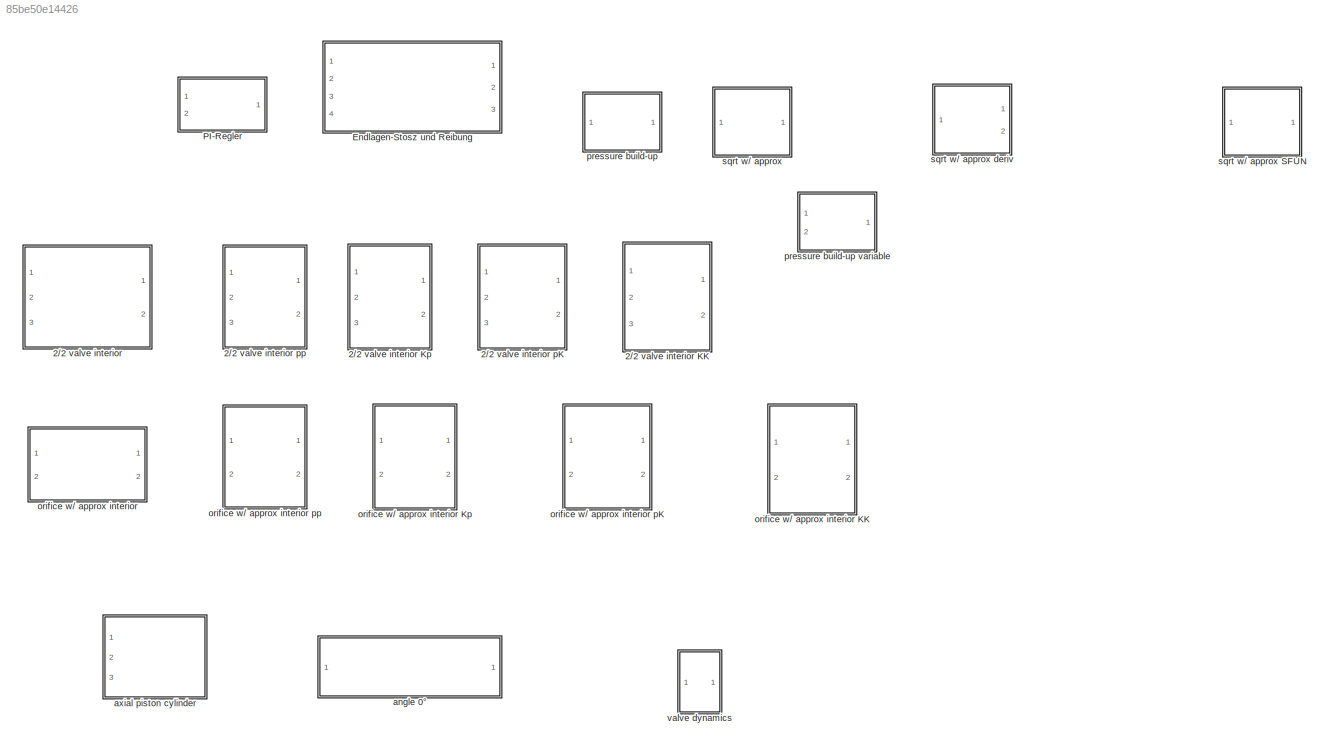
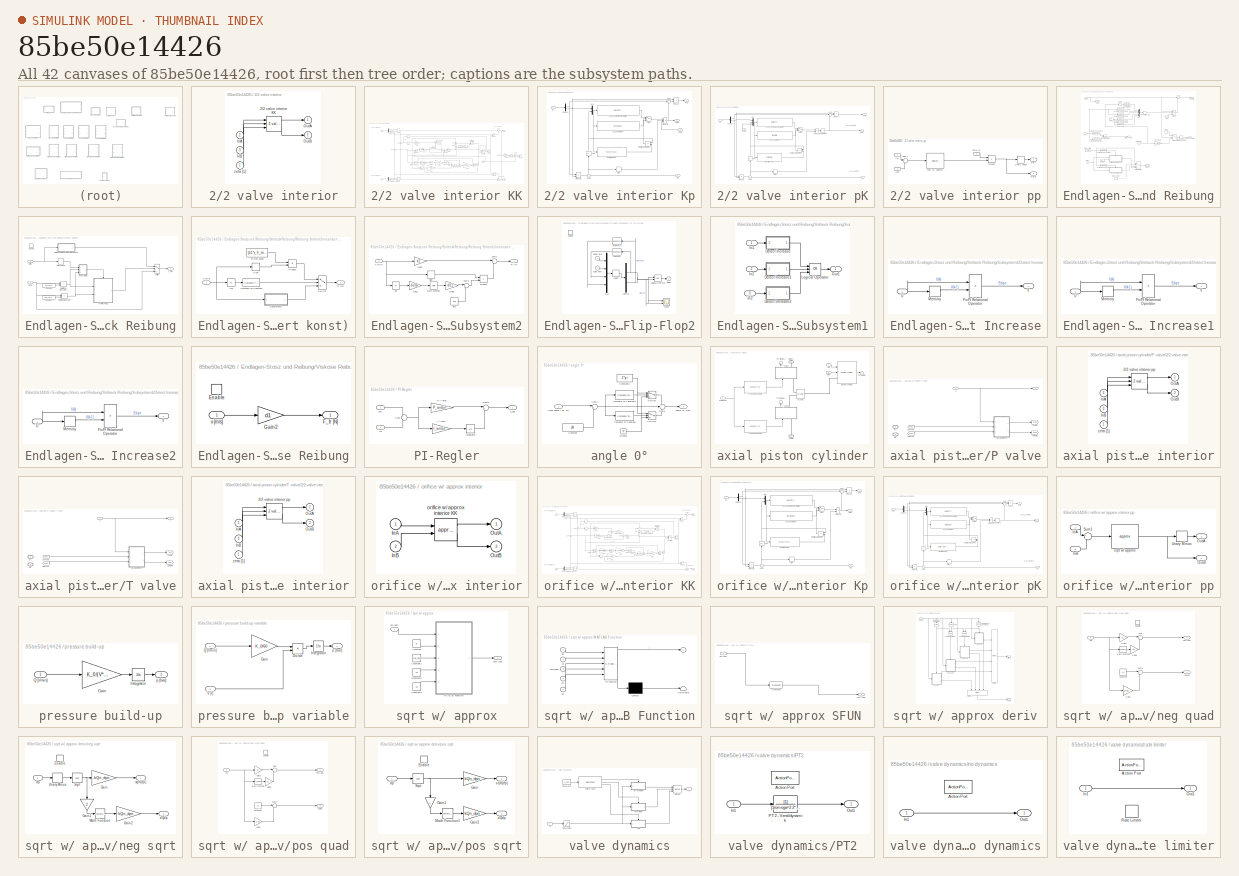
[diagram: thumbnail index - all 42 canvases of the model, root first then tree order]
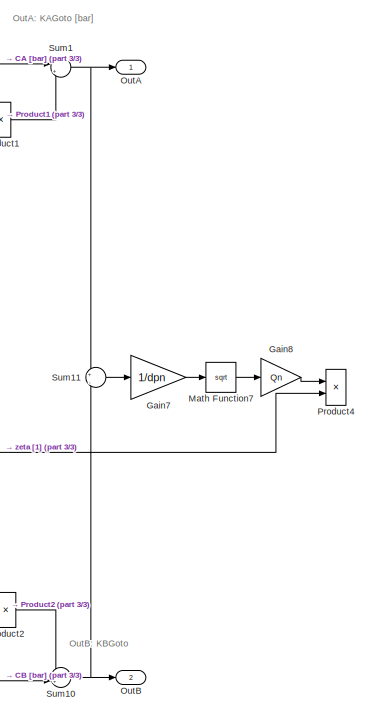
[diagram: 2/2 valve interior KK - part 1/3, right side, full height]
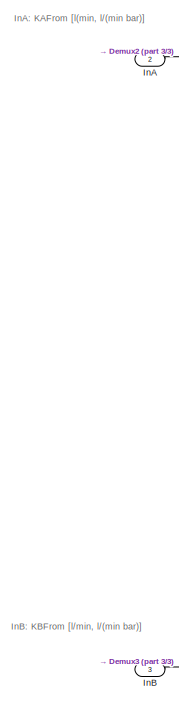
[diagram: 2/2 valve interior KK - part 2/3, left side, full height]
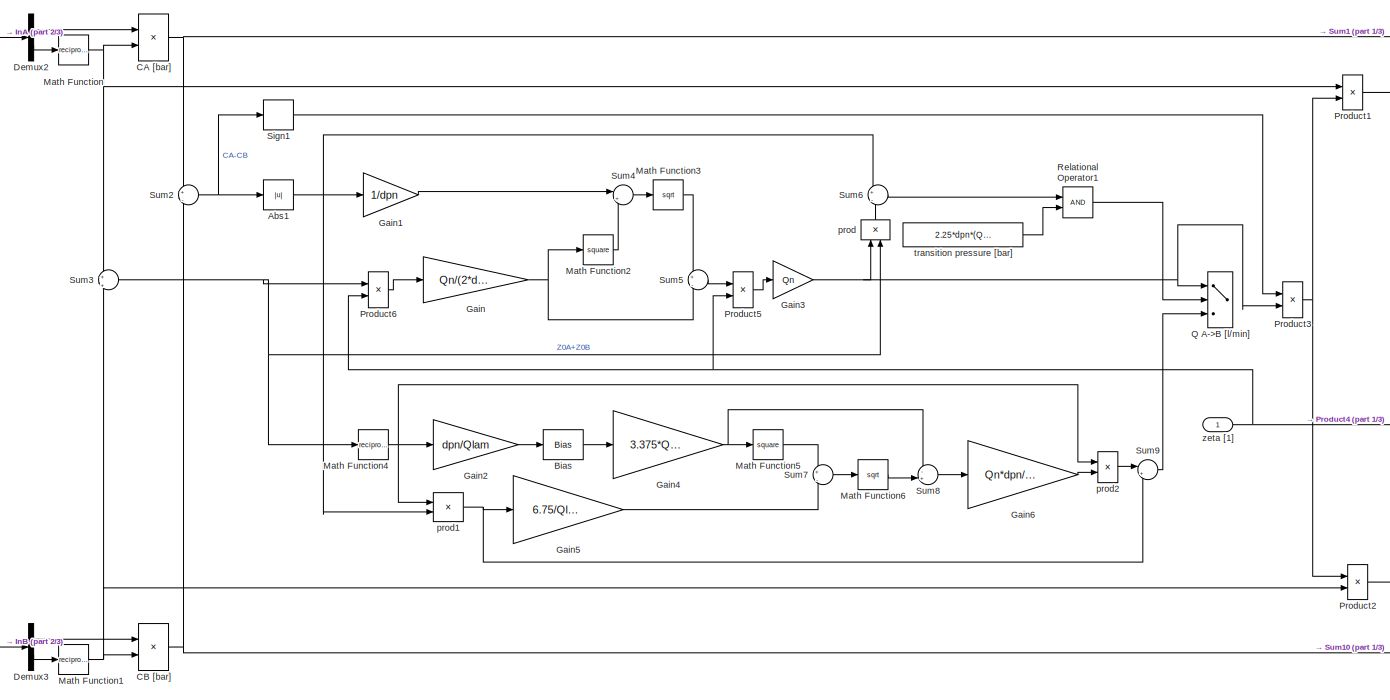
[diagram: 2/2 valve interior KK - part 3/3, center side, full height]
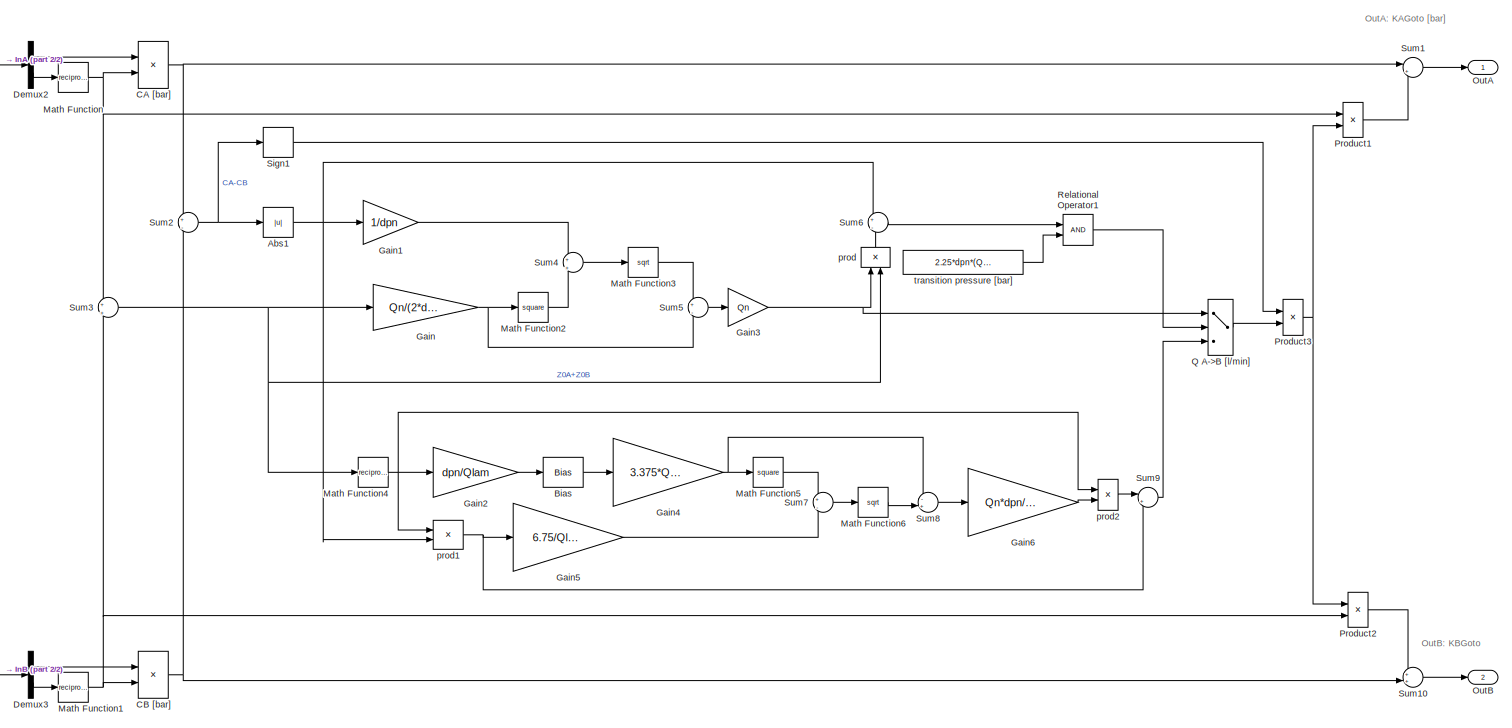
[diagram: orifice w/ approx interior KK - part 1/2, most of the canvas]
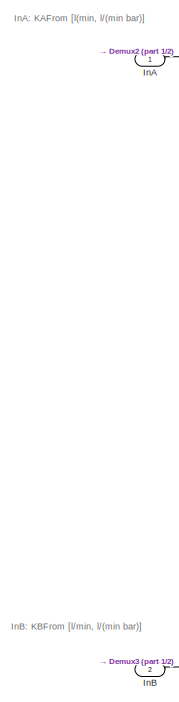
[diagram: orifice w/ approx interior KK - part 2/2, left side, full height]
MODEL slx_85be50e14426
KIND library
CONFIG AbsTol = auto
CONFIG EnableMultiTasking = off
CONFIG FixedStep = auto
CONFIG MaxStep = auto
CONFIG MinStep = auto
CONFIG RelTol = 1e-3
CONFIG SampleTimeConstraint = Unconstrained
CONFIG SolverName = ode45
CONFIG StartTime = 0.0
CONFIG StopTime = 10.0
BLOCK [SubSystem] 2//2 valve interior
  BlockChoice = 2/2 valve interior KK
  MemberBlocks = 2/2 valve interior KK,2/2 valve interior Kp,2/2 valve interior pK,2/2 valve interior pp
  Ports = [3, 2]
  TemplateBlock = self
BLOCK [SubSystem] 2//2 valve interior KK
  Ports = [3, 2]
BLOCK [Abs] 2//2 valve interior KK/Abs1
  SaturateOnIntegerOverflow = off
  ZeroCross = off
BLOCK [Bias] 2//2 valve interior KK/Bias
  Bias = 1
  SaturateOnIntegerOverflow = off
BLOCK [Product] 2//2 valve interior KK/CA [bar]
  Inputs = **
  Ports = [2, 1]
  RndMeth = Zero
BLOCK [Product] 2//2 valve interior KK/CB [bar]
  Inputs = **
  Ports = [2, 1]
  RndMeth = Zero
BLOCK [Demux] 2//2 valve interior KK/Demux2
  DisplayOption = none
  Outputs = 2
  Ports = [1, 2]
BLOCK [Demux] 2//2 valve interior KK/Demux3
  DisplayOption = none
  Outputs = 2
  Ports = [1, 2]
BLOCK [Gain] 2//2 valve interior KK/Gain
  Gain = Qn/(2*dpn)
BLOCK [Gain] 2//2 valve interior KK/Gain1
  Gain = 1/dpn
BLOCK [Gain] 2//2 valve interior KK/Gain2
  Gain = dpn/Qlam
BLOCK [Gain] 2//2 valve interior KK/Gain3
  Gain = Qn
BLOCK [Gain] 2//2 valve interior KK/Gain4
  Gain = 3.375*Qn/Qlam
BLOCK [Gain] 2//2 valve interior KK/Gain5
  Gain = 6.75/Qlam
BLOCK [Gain] 2//2 valve interior KK/Gain6
  Gain = Qn*dpn/Qlam
BLOCK [Gain] 2//2 valve interior KK/Gain7
  Gain = 1/dpn
BLOCK [Gain] 2//2 valve interior KK/Gain8
  Gain = Qn
BLOCK [Inport] 2//2 valve interior KK/InA
  Port = 2
BLOCK [Inport] 2//2 valve interior KK/InB
  Port = 3
BLOCK [Math] 2//2 valve interior KK/Math Function
  Operator = reciprocal
  Ports = [1, 1]
  SignedPower = on
BLOCK [Math] 2//2 valve interior KK/Math Function1
  Operator = reciprocal
  Ports = [1, 1]
  SignedPower = on
BLOCK [Math] 2//2 valve interior KK/Math Function2
  Operator = square
  Ports = [1, 1]
  SignedPower = on
BLOCK [Math] 2//2 valve interior KK/Math Function3
  Operator = sqrt
  Ports = [1, 1]
  SignedPower = on
BLOCK [Math] 2//2 valve interior KK/Math Function4
  Operator = reciprocal
  Ports = [1, 1]
  SignedPower = on
BLOCK [Math] 2//2 valve interior KK/Math Function5
  Operator = square
  Ports = [1, 1]
  SignedPower = on
BLOCK [Math] 2//2 valve interior KK/Math Function6
  Operator = sqrt
  Ports = [1, 1]
  SignedPower = on
BLOCK [Math] 2//2 valve interior KK/Math Function7
  Operator = sqrt
  Ports = [1, 1]
  SignedPower = on
BLOCK [Outport] 2//2 valve interior KK/OutA
BLOCK [Outport] 2//2 valve interior KK/OutB
  Port = 2
BLOCK [Product] 2//2 valve interior KK/Product1
  Ports = [2, 1]
  RndMeth = Zero
BLOCK [Product] 2//2 valve interior KK/Product2
  Ports = [2, 1]
  RndMeth = Zero
BLOCK [Product] 2//2 valve interior KK/Product3
  Ports = [2, 1]
  RndMeth = Zero
BLOCK [Product] 2//2 valve interior KK/Product4
  Ports = [2, 1]
  RndMeth = Zero
BLOCK [Product] 2//2 valve interior KK/Product5
  Ports = [2, 1]
  RndMeth = Zero
BLOCK [Product] 2//2 valve interior KK/Product6
  Ports = [2, 1]
  RndMeth = Zero
BLOCK [Switch] 2//2 valve interior KK/Q A->B  [l//min]
  Criteria = u2 > Threshold
  InputSameDT = off
  SaturateOnIntegerOverflow = off
  ZeroCross = off
BLOCK [RelationalOperator] 2//2 valve interior KK/Relational Operator1
  InputSameDT = off
  OutDataTypeStr = boolean
  Ports = [2, 1]
BLOCK [Signum] 2//2 valve interior KK/Sign1
BLOCK [Sum] 2//2 valve interior KK/Sum1
  Inputs = |+-
  Ports = [2, 1]
BLOCK [Sum] 2//2 valve interior KK/Sum10
  Inputs = ++|
  Ports = [2, 1]
BLOCK [Sum] 2//2 valve interior KK/Sum11
  Inputs = +|-
  Ports = [2, 1]
BLOCK [Sum] 2//2 valve interior KK/Sum2
  Inputs = +|-
  Ports = [2, 1]
BLOCK [Sum] 2//2 valve interior KK/Sum3
  Inputs = +|+
  Ports = [2, 1]
BLOCK [Sum] 2//2 valve interior KK/Sum4
  Inputs = |++
  Ports = [2, 1]
BLOCK [Sum] 2//2 valve interior KK/Sum5
  Inputs = +|-
  Ports = [2, 1]
BLOCK [Sum] 2//2 valve interior KK/Sum6
  Inputs = +|-
  Ports = [2, 1]
BLOCK [Sum] 2//2 valve interior KK/Sum7
  Inputs = +|-
  Ports = [2, 1]
BLOCK [Sum] 2//2 valve interior KK/Sum8
  Inputs = -+|
  Ports = [2, 1]
BLOCK [Sum] 2//2 valve interior KK/Sum9
  Inputs = |++
  Ports = [2, 1]
BLOCK [Product] 2//2 valve interior KK/prod
  Inputs = **
  Ports = [2, 1]
  RndMeth = Zero
BLOCK [Product] 2//2 valve interior KK/prod1
  Inputs = **
  Ports = [2, 1]
  RndMeth = Zero
BLOCK [Product] 2//2 valve interior KK/prod2
  Inputs = **
  Ports = [2, 1]
  RndMeth = Zero
BLOCK [Constant] 2//2 valve interior KK/transition pressure [bar]
  Value = 2.25*dpn*(Qn/Qlam)^2
BLOCK [Inport] 2//2 valve interior KK/zeta [1]
BLOCK [SubSystem] 2//2 valve interior Kp
  Ports = [3, 2]
BLOCK [Abs] 2//2 valve interior Kp/Abs
  SaturateOnIntegerOverflow = off
  ZeroCross = off
BLOCK [Demux] 2//2 valve interior Kp/Demux1
  DisplayOption = none
  Outputs = 2
  Ports = [1, 2]
BLOCK [Inport] 2//2 valve interior Kp/InA
  Port = 2
BLOCK [Inport] 2//2 valve interior Kp/InB
  Port = 3
BLOCK [Mux] 2//2 valve interior Kp/Mux
  DisplayOption = bar
  Inputs = 2
  Ports = [2, 1]
BLOCK [Outport] 2//2 valve interior Kp/OutA
BLOCK [Outport] 2//2 valve interior Kp/OutB
  Port = 2
BLOCK [Product] 2//2 valve interior Kp/Product
  Inputs = /*
  Ports = [2, 1]
  RndMeth = Zero
BLOCK [Product] 2//2 valve interior Kp/Product1
  Inputs = */
  Ports = [2, 1]
  RndMeth = Zero
BLOCK [Product] 2//2 valve interior Kp/Product2
  Inputs = 3
  Ports = [3, 1]
  RndMeth = Zero
BLOCK [Fcn] 2//2 valve interior Kp/Q_K 2nd order approximation
  Expr = -(1/8)*u[1]^2*(27*klin*Qn^2/u[1]+27*Qn^2-3*(81*klin^2*Qn^4/u[1]^2+162*klin*Qn^4/u[1]+81*Qn^4-48*Qn^2*klin^3*dpn*u[2]/u[1])^(1/2)-8*klin^3*dpn*u[2]/u[1])/(klin^3*dpn)
BLOCK [Fcn] 2//2 valve interior Kp/Q_K square root
  Expr = -Qn*(Qn/u[1]-sqrt(Qn^2/u[1]^2+4*dpn*u[2]))/(2*dpn)
BLOCK [RelationalOperator] 2//2 valve interior Kp/Relational Operator
  InputSameDT = off
  Operator = <=
  OutDataTypeStr = boolean
  Ports = [2, 1]
BLOCK [Signum] 2//2 valve interior Kp/Sign
BLOCK [Sum] 2//2 valve interior Kp/Sum
  Inputs = |+-
  Ports = [2, 1]
BLOCK [Sum] 2//2 valve interior Kp/Sum1
  Inputs = +|-
  Ports = [2, 1]
BLOCK [Switch] 2//2 valve interior Kp/Switch
  Criteria = u2 > Threshold
  InputSameDT = off
  SaturateOnIntegerOverflow = off
  ZeroCross = off
BLOCK [Fcn] 2//2 valve interior Kp/transition point
  Expr = .75*Qn^2*(3+2*klin/u[1])/(dpn*klin^2)
BLOCK [Inport] 2//2 valve interior Kp/zeta [1]
BLOCK [SubSystem] 2//2 valve interior pK
  Ports = [3, 2]
BLOCK [Abs] 2//2 valve interior pK/Abs
  SaturateOnIntegerOverflow = off
  ZeroCross = off
BLOCK [Demux] 2//2 valve interior pK/Demux1
  DisplayOption = none
  Outputs = 2
  Ports = [1, 2]
BLOCK [Inport] 2//2 valve interior pK/InA
  Port = 2
BLOCK [Inport] 2//2 valve interior pK/InB
  Port = 3
BLOCK [Mux] 2//2 valve interior pK/Mux
  DisplayOption = bar
  Inputs = 3
  Ports = [3, 1]
BLOCK [Outport] 2//2 valve interior pK/OutA
BLOCK [Outport] 2//2 valve interior pK/OutB
  Port = 2
BLOCK [Product] 2//2 valve interior pK/Product
  Inputs = /*
  Ports = [2, 1]
  RndMeth = Zero
BLOCK [Product] 2//2 valve interior pK/Product1
  Inputs = */
  Ports = [2, 1]
  RndMeth = Zero
BLOCK [Product] 2//2 valve interior pK/Product2
  Ports = [2, 1]
  RndMeth = Zero
BLOCK [Fcn] 2//2 valve interior pK/Q_K 2nd order approximation
  Expr = -(1/8)*u[1]^2*(27*u[3]^3*klin*Qn^2/u[1]+27*Qn^2*u[3]^2-3*(81*u[3]^6*klin^2*Qn^4/u[1]^2+162*u[3]^5*klin*Qn^4/u[1]+81*u[3]^4*Qn^4-48*u[3]^5*Qn^2*klin^3*dpn*u[2]/u[1])^(1/2)-8*(klin*u[3])^3*dpn*u[2]/u[1])/((klin*u[3])^3*dpn)
BLOCK [Fcn] 2//2 valve interior pK/Q_K square root
  Expr = -(Qn*u[3])*((Qn*u[3])/u[1]-sqrt((Qn*u[3])^2/u[1]^2+4*dpn*u[2]))/(2*dpn)
BLOCK [RelationalOperator] 2//2 valve interior pK/Relational Operator
  InputSameDT = off
  Operator = <=
  OutDataTypeStr = boolean
  Ports = [2, 1]
BLOCK [Signum] 2//2 valve interior pK/Sign
BLOCK [Sum] 2//2 valve interior pK/Sum
  Inputs = |+-
  Ports = [2, 1]
BLOCK [Sum] 2//2 valve interior pK/Sum1
  Inputs = -|+
  Ports = [2, 1]
BLOCK [Switch] 2//2 valve interior pK/Switch
  Criteria = u2 > Threshold
  InputSameDT = off
  SaturateOnIntegerOverflow = off
  ZeroCross = off
BLOCK [UnaryMinus] 2//2 valve interior pK/Unary Minus
BLOCK [Fcn] 2//2 valve interior pK/transition point
  Expr = .75*(Qn*u[3])^2*(3+2*(klin*u[3])/u[1])/(dpn*(klin*u[3])^2)
BLOCK [Inport] 2//2 valve interior pK/zeta [1]
BLOCK [SubSystem] 2//2 valve interior pp
  Ports = [3, 2]
BLOCK [Inport] 2//2 valve interior pp/InA
  Port = 2
BLOCK [Inport] 2//2 valve interior pp/InB
  Port = 3
BLOCK [Outport] 2//2 valve interior pp/OutA
BLOCK [Outport] 2//2 valve interior pp/OutB
  Port = 2
BLOCK [Product] 2//2 valve interior pp/Product
  Ports = [2, 1]
  RndMeth = Zero
BLOCK [Sum] 2//2 valve interior pp/Sum1
  InputSameDT = on
  Inputs = +|-
  OutDataTypeStr = Inherit: Same as first input
  Ports = [2, 1]
  SaturateOnIntegerOverflow = on
BLOCK [UnaryMinus] 2//2 valve interior pp/Unary Minus
BLOCK [Reference] 2//2 valve interior pp/sqrt w// approx  REF=$bdroot/sqrt w// approx
  Ports = [1, 1]
  SourceBlock = $bdroot/sqrt w// approx
  SourceType = Approximierte Wurzelfunktion (2. Ordn.)
BLOCK [Inport] 2//2 valve interior pp/zeta [1]
BLOCK [Reference] 2//2 valve interior/2//2 valve interior KK  REF=$bdroot/2//2 valve interior KK
  Ports = [3, 2]
  SourceBlock = $bdroot/2//2 valve interior KK
  SourceType = SubSystem
BLOCK [Inport] 2//2 valve interior/InA
  Port = 2
BLOCK [Inport] 2//2 valve interior/InB
  Port = 3
BLOCK [Outport] 2//2 valve interior/OutA
BLOCK [Outport] 2//2 valve interior/OutB
  Port = 2
BLOCK [Inport] 2//2 valve interior/zeta [1]
BLOCK [SubSystem] Endlagen-Stosz und Reibung
  Ports = [4, 3]
BLOCK [Outport] Endlagen-Stosz und Reibung/AB Geschw. [m//s]
  Port = 3
BLOCK [Abs] Endlagen-Stosz und Reibung/Abs
  SaturateOnIntegerOverflow = off
BLOCK [CombinatorialLogic] Endlagen-Stosz und Reibung/Combinatorial Logic
  TruthTable = [0;0;0;0; 0;0;0;0; 0;0;0;0; 0;0;0;0; 0;0;0;0; 0;1;0;0; 0;0;1;0; 0;0;0;0]
BLOCK [Reference] Endlagen-Stosz und Reibung/Compare To Constant  REF=simulink/Logic and Bit
Operations/Compare
To Constant
  Ports = [1, 1]
  SourceBlock = simulink/Logic and Bit\nOperations/Compare\nTo Constant
  SourceType = Compare To Constant
BLOCK [Reference] Endlagen-Stosz und Reibung/Compare To Constant1  REF=simulink/Logic and Bit
Operations/Compare
To Constant
  Ports = [1, 1]
  SourceBlock = simulink/Logic and Bit\nOperations/Compare\nTo Constant
  SourceType = Compare To Constant
BLOCK [Reference] Endlagen-Stosz und Reibung/Compare To Constant2  REF=simulink/Logic and Bit
Operations/Compare
To Constant
  Ports = [1, 1]
  SourceBlock = simulink/Logic and Bit\nOperations/Compare\nTo Constant
  SourceType = Compare To Constant
BLOCK [Reference] Endlagen-Stosz und Reibung/Compare To Constant3  REF=simulink/Logic and Bit
Operations/Compare
To Constant
  Ports = [1, 1]
  SourceBlock = simulink/Logic and Bit\nOperations/Compare\nTo Constant
  SourceType = Compare To Constant
BLOCK [Reference] Endlagen-Stosz und Reibung/Compare To Constant4  REF=simulink/Logic and Bit
Operations/Compare
To Constant
  Ports = [1, 1]
  SourceBlock = simulink/Logic and Bit\nOperations/Compare\nTo Constant
  SourceType = Compare To Constant
BLOCK [Reference] Endlagen-Stosz und Reibung/Compare To Constant5  REF=simulink/Logic and Bit
Operations/Compare
To Constant
  Ports = [1, 1]
  SourceBlock = simulink/Logic and Bit\nOperations/Compare\nTo Constant
  SourceType = Compare To Constant
BLOCK [Reference] Endlagen-Stosz und Reibung/Compare To Constant6  REF=simulink/Logic and Bit
Operations/Compare
To Constant
  Ports = [1, 1]
  SourceBlock = simulink/Logic and Bit\nOperations/Compare\nTo Constant
  SourceType = Compare To Constant
BLOCK [Reference] Endlagen-Stosz und Reibung/Compare To Constant7  REF=simulink/Logic and Bit
Operations/Compare
To Constant
  Ports = [1, 1]
  SourceBlock = simulink/Logic and Bit\nOperations/Compare\nTo Constant
  SourceType = Compare To Constant
BLOCK [Reference] Endlagen-Stosz und Reibung/Compare To Constant8  REF=simulink/Logic and Bit
Operations/Compare
To Constant
  Ports = [1, 1]
  SourceBlock = simulink/Logic and Bit\nOperations/Compare\nTo Constant
  SourceType = Compare To Constant
BLOCK [From] Endlagen-Stosz und Reibung/From
  CloseFcn = tagdialog Close
  GotoTag = dF
BLOCK [From] Endlagen-Stosz und Reibung/From1
  CloseFcn = tagdialog Close
  GotoTag = F_fr
BLOCK [From] Endlagen-Stosz und Reibung/From2
  CloseFcn = tagdialog Close
  GotoTag = dF
BLOCK [InitialCondition] Endlagen-Stosz und Reibung/Geschw. zu Simulationsbeginn
  Value = v_0
BLOCK [Goto] Endlagen-Stosz und Reibung/Goto
  GotoTag = dF
BLOCK [Goto] Endlagen-Stosz und Reibung/Goto1
  GotoTag = F_fr
BLOCK [Logic] Endlagen-Stosz und Reibung/Logical Operator
  AllPortsSameDT = off
  Operator = OR
  OutDataTypeStr = boolean
  Ports = [2, 1]
BLOCK [MultiPortSwitch] Endlagen-Stosz und Reibung/Multiport Switch
  InputSameDT = off
  Ports = [4, 1]
  SaturateOnIntegerOverflow = off
BLOCK [Mux] Endlagen-Stosz und Reibung/Mux
  DisplayOption = bar
  Inputs = 5
  Ports = [5, 1]
BLOCK [Gain] Endlagen-Stosz und Reibung/Stoszfaktor
  Gain = -k_stosz
  OutDataTypeStr = Inherit: Same as input
  ParamDataTypeStr = Inherit: Same as input
  SaturateOnIntegerOverflow = on
BLOCK [SubSystem] Endlagen-Stosz und Reibung/Stribeck Reibung
  Ports = [2, 1, 1]
  TreatAsAtomicUnit = on
BLOCK [Constant] Endlagen-Stosz und Reibung/Stribeck Reibung/Constant
  Value = -(d00+d01)
BLOCK [Constant] Endlagen-Stosz und Reibung/Stribeck Reibung/Constant1
  Value = d00+d01
BLOCK [EnablePort] Endlagen-Stosz und Reibung/Stribeck Reibung/Enable
  Ports = []
  PropagateVarSize = During execution
BLOCK [Outport] Endlagen-Stosz und Reibung/Stribeck Reibung/F_fr [N]
BLOCK [HitCross] Endlagen-Stosz und Reibung/Stribeck Reibung/Hit Crossing
  Ports = [1, 1]
BLOCK [SubSystem] Endlagen-Stosz und Reibung/Stribeck Reibung/Reibung Stribek (linearisiert konst)
  Ports = [1, 1]
BLOCK [Abs] Endlagen-Stosz und Reibung/Stribeck Reibung/Reibung Stribek (linearisiert konst)/Abs
  SaturateOnIntegerOverflow = off
BLOCK [Reference] Endlagen-Stosz und Reibung/Stribeck Reibung/Reibung Stribek (linearisiert konst)/Compare To Constant  REF=simulink/Logic and Bit
Operations/Compare
To Constant
  Ports = [1, 1]
  SourceBlock = simulink/Logic and Bit\nOperations/Compare\nTo Constant
  SourceType = Compare To Constant
BLOCK [Outport] Endlagen-Stosz und Reibung/Stribeck Reibung/Reibung Stribek (linearisiert konst)/Fr [N]
BLOCK [Constant] Endlagen-Stosz und Reibung/Stribeck Reibung/Reibung Stribek (linearisiert konst)/Fr_max konst
  Value = (d1*v_fr_min+sign(v_fr_min)*(d00+d01*exp(-beta*abs(v_fr_min))))
BLOCK [Product] Endlagen-Stosz und Reibung/Stribeck Reibung/Reibung Stribek (linearisiert konst)/Product
  Ports = [2, 1]
  RndMeth = Zero
BLOCK [Signum] Endlagen-Stosz und Reibung/Stribeck Reibung/Reibung Stribek (linearisiert konst)/Sign
BLOCK [SubSystem] Endlagen-Stosz und Reibung/Stribeck Reibung/Reibung Stribek (linearisiert konst)/Subsystem2
  Ports = [1, 1]
BLOCK [Abs] Endlagen-Stosz und Reibung/Stribeck Reibung/Reibung Stribek (linearisiert konst)/Subsystem2/Abs
  SaturateOnIntegerOverflow = off
BLOCK [Outport] Endlagen-Stosz und Reibung/Stribeck Reibung/Reibung Stribek (linearisiert konst)/Subsystem2/Fr [N]
BLOCK [Gain] Endlagen-Stosz und Reibung/Stribeck Reibung/Reibung Stribek (linearisiert konst)/Subsystem2/Gain1
  Gain = d1
BLOCK [Gain] Endlagen-Stosz und Reibung/Stribeck Reibung/Reibung Stribek (linearisiert konst)/Subsystem2/Gain2
  Gain = -beta
BLOCK [Gain] Endlagen-Stosz und Reibung/Stribeck Reibung/Reibung Stribek (linearisiert konst)/Subsystem2/Gain3
  Gain = d01
BLOCK [Math] Endlagen-Stosz und Reibung/Stribeck Reibung/Reibung Stribek (linearisiert konst)/Subsystem2/Math Function
  Ports = [1, 1]
  SignedPower = on
BLOCK [Product] Endlagen-Stosz und Reibung/Stribeck Reibung/Reibung Stribek (linearisiert konst)/Subsystem2/Product
  Ports = [2, 1]
  RndMeth = Zero
BLOCK [Signum] Endlagen-Stosz und Reibung/Stribeck Reibung/Reibung Stribek (linearisiert konst)/Subsystem2/Sign
BLOCK [Sum] Endlagen-Stosz und Reibung/Stribeck Reibung/Reibung Stribek (linearisiert konst)/Subsystem2/Sum2
  Inputs = |++
  Ports = [2, 1]
BLOCK [Sum] Endlagen-Stosz und Reibung/Stribeck Reibung/Reibung Stribek (linearisiert konst)/Subsystem2/Sum3
  Inputs = |++
  Ports = [2, 1]
BLOCK [Constant] Endlagen-Stosz und Reibung/Stribeck Reibung/Reibung Stribek (linearisiert konst)/Subsystem2/d00
  Value = d00
BLOCK [Inport] Endlagen-Stosz und Reibung/Stribeck Reibung/Reibung Stribek (linearisiert konst)/Subsystem2/v [m//s]
BLOCK [Switch] Endlagen-Stosz und Reibung/Stribeck Reibung/Reibung Stribek (linearisiert konst)/Switch
  InputSameDT = off
  SaturateOnIntegerOverflow = off
BLOCK [Inport] Endlagen-Stosz und Reibung/Stribeck Reibung/Reibung Stribek (linearisiert konst)/v [m//s]
BLOCK [RelationalOperator] Endlagen-Stosz und Reibung/Stribeck Reibung/Relational Operator
  InputSameDT = off
  Operator = <
  OutDataTypeStr = boolean
  Ports = [2, 1]
BLOCK [RelationalOperator] Endlagen-Stosz und Reibung/Stribeck Reibung/Relational Operator1
  InputSameDT = off
  Operator = >
  OutDataTypeStr = boolean
  Ports = [2, 1]
BLOCK [SubSystem] Endlagen-Stosz und Reibung/Stribeck Reibung/S-R Flip-Flop2
  Ports = [2, 1, 0, 1]
  TreatAsAtomicUnit = on
BLOCK [Demux] Endlagen-Stosz und Reibung/Stribeck Reibung/S-R Flip-Flop2/Demux
  DisplayOption = none
  Outputs = 2
  Ports = [1, 2]
BLOCK [CombinatorialLogic] Endlagen-Stosz und Reibung/Stribeck Reibung/S-R Flip-Flop2/Logic2
  TruthTable = [0 0; 0 0; 0 0; 0 0; 0 1; 0 1; 1 0; 0 0; 1 0; 0 1; 1 0; 1 0; 0 0; 0 0; 0 0; 0 0]
BLOCK [Logic] Endlagen-Stosz und Reibung/Stribeck Reibung/S-R Flip-Flop2/Logical Operator
  AllPortsSameDT = off
  Operator = XOR
  OutDataTypeStr = boolean
  Ports = [2, 1]
BLOCK [Memory] Endlagen-Stosz und Reibung/Stribeck Reibung/S-R Flip-Flop2/Memory
  InheritSampleTime = on
BLOCK [Memory] Endlagen-Stosz und Reibung/Stribeck Reibung/S-R Flip-Flop2/Memory1
  InheritSampleTime = on
BLOCK [Mux] Endlagen-Stosz und Reibung/Stribeck Reibung/S-R Flip-Flop2/Mux
  Ports = [4, 1]
BLOCK [Scope] Endlagen-Stosz und Reibung/Stribeck Reibung/S-R Flip-Flop2/Scope
  Floating = off
  NumInputPorts = 2
  Ports = [2]
  ScopeSpecificationString = C++SS(StrPVP('Location','[1, 405, 713, 799]'),StrPVP('Open','off'),MxPVP('AxesTitles',54,'struct(''axes1'',''%<SignalLabel>'',''axes2'',''%<SignalLabel>'')'),StrPVP('ShowLegends','off'),StrPVP('YMin','-5~-5'),StrPVP('YMax','5~5'),StrPVP('SaveName','ScopeData3'),StrPVP('DataFormat','StructureWithTime'),StrPVP('LimitDataPoints','off'),StrPVP('BlockParamSampleTime','0'),StrPVP('ScrollMode','off'),Str...<+60ch>
BLOCK [TriggerPort] Endlagen-Stosz und Reibung/Stribeck Reibung/S-R Flip-Flop2/Trigger
  Ports = []
  StatesWhenEnabling = held
  VariantControl = (inherit)
BLOCK [Inport] Endlagen-Stosz und Reibung/Stribeck Reibung/S-R Flip-Flop2/lower limit
  Port = 2
BLOCK [Outport] Endlagen-Stosz und Reibung/Stribeck Reibung/S-R Flip-Flop2/slides
  InitialOutput = 1
BLOCK [Inport] Endlagen-Stosz und Reibung/Stribeck Reibung/S-R Flip-Flop2/upper limit
BLOCK [SubSystem] Endlagen-Stosz und Reibung/Stribeck Reibung/Subsystem1
  Ports = [3, 1]
BLOCK [SubSystem] Endlagen-Stosz und Reibung/Stribeck Reibung/Subsystem1/Detect Increase
  AncestorBlock = simulink/Logic and Bit\nOperations/Detect\nIncrease
  Ports = [1, 1]
BLOCK [RelationalOperator] Endlagen-Stosz und Reibung/Stribeck Reibung/Subsystem1/Detect Increase/FixPt Relational Operator
  InputSameDT = off
  Operator = >
  OutDataTypeStr = uint(8)
  Ports = [2, 1]
  ZeroCross = off
BLOCK [Memory] Endlagen-Stosz und Reibung/Stribeck Reibung/Subsystem1/Detect Increase/Memory
BLOCK [Inport] Endlagen-Stosz und Reibung/Stribeck Reibung/Subsystem1/Detect Increase/U
BLOCK [Outport] Endlagen-Stosz und Reibung/Stribeck Reibung/Subsystem1/Detect Increase/Y
  InitialOutput = 0
BLOCK [SubSystem] Endlagen-Stosz und Reibung/Stribeck Reibung/Subsystem1/Detect Increase1
  AncestorBlock = simulink/Logic and Bit\nOperations/Detect\nIncrease
  Ports = [1, 1]
BLOCK [RelationalOperator] Endlagen-Stosz und Reibung/Stribeck Reibung/Subsystem1/Detect Increase1/FixPt Relational Operator
  InputSameDT = off
  Operator = >
  OutDataTypeStr = uint(8)
  Ports = [2, 1]
  ZeroCross = off
BLOCK [Memory] Endlagen-Stosz und Reibung/Stribeck Reibung/Subsystem1/Detect Increase1/Memory
BLOCK [Inport] Endlagen-Stosz und Reibung/Stribeck Reibung/Subsystem1/Detect Increase1/U
BLOCK [Outport] Endlagen-Stosz und Reibung/Stribeck Reibung/Subsystem1/Detect Increase1/Y
  InitialOutput = 0
BLOCK [SubSystem] Endlagen-Stosz und Reibung/Stribeck Reibung/Subsystem1/Detect Increase2
  AncestorBlock = simulink/Logic and Bit\nOperations/Detect\nIncrease
  Ports = [1, 1]
BLOCK [RelationalOperator] Endlagen-Stosz und Reibung/Stribeck Reibung/Subsystem1/Detect Increase2/FixPt Relational Operator
  InputSameDT = off
  Operator = >
  OutDataTypeStr = uint(8)
  Ports = [2, 1]
  ZeroCross = off
BLOCK [Memory] Endlagen-Stosz und Reibung/Stribeck Reibung/Subsystem1/Detect Increase2/Memory
BLOCK [Inport] Endlagen-Stosz und Reibung/Stribeck Reibung/Subsystem1/Detect Increase2/U
BLOCK [Outport] Endlagen-Stosz und Reibung/Stribeck Reibung/Subsystem1/Detect Increase2/Y
  InitialOutput = 0
BLOCK [Inport] Endlagen-Stosz und Reibung/Stribeck Reibung/Subsystem1/In1
BLOCK [Inport] Endlagen-Stosz und Reibung/Stribeck Reibung/Subsystem1/In2
  Port = 2
BLOCK [Inport] Endlagen-Stosz und Reibung/Stribeck Reibung/Subsystem1/In3
  Port = 3
BLOCK [Logic] Endlagen-Stosz und Reibung/Stribeck Reibung/Subsystem1/Logical Operator
  AllPortsSameDT = off
  Inputs = 3
  Operator = OR
  OutDataTypeStr = boolean
  Ports = [3, 1]
BLOCK [Outport] Endlagen-Stosz und Reibung/Stribeck Reibung/Subsystem1/Out1
BLOCK [Switch] Endlagen-Stosz und Reibung/Stribeck Reibung/Switch
  InputSameDT = off
  SaturateOnIntegerOverflow = off
BLOCK [Inport] Endlagen-Stosz und Reibung/Stribeck Reibung/dF [N]
  Port = 2
BLOCK [Inport] Endlagen-Stosz und Reibung/Stribeck Reibung/v [m//s]
BLOCK [Sum] Endlagen-Stosz und Reibung/Sum
  Inputs = |+-
  Ports = [2, 1]
BLOCK [Switch] Endlagen-Stosz und Reibung/Switch2
  InputSameDT = off
  SaturateOnIntegerOverflow = off
  Threshold = 0.5
BLOCK [Switch] Endlagen-Stosz und Reibung/Switch3
  InputSameDT = off
  SaturateOnIntegerOverflow = off
  Threshold = 0.5
BLOCK [SubSystem] Endlagen-Stosz und Reibung/Viskose Reibung
  Ports = [1, 1, 1]
  TreatAsAtomicUnit = on
BLOCK [EnablePort] Endlagen-Stosz und Reibung/Viskose Reibung/Enable
  Ports = []
  PropagateVarSize = During execution
BLOCK [Outport] Endlagen-Stosz und Reibung/Viskose Reibung/F_fr [N]
BLOCK [Gain] Endlagen-Stosz und Reibung/Viskose Reibung/Gain2
  Gain = d1
BLOCK [Inport] Endlagen-Stosz und Reibung/Viskose Reibung/v [m//s]
BLOCK [Inport] Endlagen-Stosz und Reibung/dF [N]
BLOCK [Outport] Endlagen-Stosz und Reibung/dF out [N]
BLOCK [Constant] Endlagen-Stosz und Reibung/nix1
  Value = 0
BLOCK [Constant] Endlagen-Stosz und Reibung/reibungsfrei
  Value = 0
BLOCK [Constant] Endlagen-Stosz und Reibung/reibungsfrei1
  Value = s_reib
BLOCK [Outport] Endlagen-Stosz und Reibung/trig.Geschw.
  Port = 2
BLOCK [Inport] Endlagen-Stosz und Reibung/v [m//s]
  Port = 3
BLOCK [Inport] Endlagen-Stosz und Reibung/v state [m//s]
  Port = 4
BLOCK [Inport] Endlagen-Stosz und Reibung/x [m]
  Port = 2
BLOCK [SubSystem] PI-Regler
  Ports = [2, 1]
BLOCK [Gain] PI-Regler/I-Anteil
  Gain = I_anteil
BLOCK [Integrator] PI-Regler/Integrator
  LowerSaturationLimit = -0.0005
  Ports = [1, 1]
  UpperSaturationLimit = 0.0005
  ZeroCross = off
BLOCK [Gain] PI-Regler/P-Anteil
  Gain = P_anteil
BLOCK [Sum] PI-Regler/Sum
  Inputs = +-
  Ports = [2, 1]
BLOCK [Sum] PI-Regler/Sum2
  Inputs = |++
  Ports = [2, 1]
BLOCK [Inport] PI-Regler/ist
  Port = 2
BLOCK [Outport] PI-Regler/s_out
BLOCK [Inport] PI-Regler/soll
BLOCK [SubSystem] angle 0°
  Ports = [1, 1]
BLOCK [Reference] angle 0°/Compare To Constant  REF=simulink/Logic and Bit
Operations/Compare
To Constant
  Ports = [1, 1]
  SourceBlock = simulink/Logic and Bit\nOperations/Compare\nTo Constant
  SourceType = Compare To Constant
BLOCK [Reference] angle 0°/Compare To Constant1  REF=simulink/Logic and Bit
Operations/Compare
To Constant
  Ports = [1, 1]
  SourceBlock = simulink/Logic and Bit\nOperations/Compare\nTo Constant
  SourceType = Compare To Constant
BLOCK [Constant] angle 0°/Constant
  Value = phi
BLOCK [Constant] angle 0°/Constant2
  Value = 2*pi
BLOCK [Ground] angle 0°/Ground
BLOCK [Sum] angle 0°/Sum1
  Inputs = |++
  Ports = [2, 1]
BLOCK [Sum] angle 0°/Sum4
  Inputs = ++-
  Ports = [3, 1]
BLOCK [Switch] angle 0°/Switch
  Criteria = u2 ~= 0
  InputSameDT = off
  SaturateOnIntegerOverflow = off
  ZeroCross = off
BLOCK [Switch] angle 0°/Switch1
  Criteria = u2 ~= 0
  InputSameDT = off
  SaturateOnIntegerOverflow = off
  ZeroCross = off
BLOCK [Outport] angle 0°/angle [0..2*pi]
BLOCK [Inport] angle 0°/crank angle [-pi..pi]
BLOCK [SubSystem] axial piston cylinder
  Ports = [3, 0, 0, 0, 0, 0, 2]
BLOCK [Lookup_n-D] axial piston cylinder/1-D Lookup Table
  BreakpointsForDimension1 = phiP
  NumberOfTableDimensions = 1
  Ports = [1, 1]
  RndMeth = Simplest
  Table = aP
BLOCK [Lookup_n-D] axial piston cylinder/1-D Lookup Table1
  BreakpointsForDimension1 = phiT
  NumberOfTableDimensions = 1
  Ports = [1, 1]
  RndMeth = Simplest
  Table = aT
BLOCK [SubSystem] axial piston cylinder/P valve
  AncestorBlock = hydroLib3/valves/2//2 valve
  Ports = [1, 1, 0, 0, 0, 1, 1]
BLOCK [SubSystem] axial piston cylinder/P valve/2//2 valve interior
  AttributesFormatString = %<BlockChoice>
  BlockChoice = 2/2 valve interior pp
  MemberBlocks = 2/2 valve interior KK,2/2 valve interior Kp,2/2 valve interior pK,2/2 valve interior pp
  Ports = [3, 2]
  TemplateBlock = hydroLib3utils/2//2 valve interior
BLOCK [Reference] axial piston cylinder/P valve/2//2 valve interior/2//2 valve interior pp  REF=$bdroot/2//2 valve interior pp
  Ports = [3, 2]
  SourceBlock = $bdroot/2//2 valve interior pp
  SourceType = SubSystem
BLOCK [Inport] axial piston cylinder/P valve/2//2 valve interior/InA
  Port = 2
BLOCK [Inport] axial piston cylinder/P valve/2//2 valve interior/InB
  Port = 3
BLOCK [Outport] axial piston cylinder/P valve/2//2 valve interior/OutA
BLOCK [Outport] axial piston cylinder/P valve/2//2 valve interior/OutB
  Port = 2
BLOCK [Inport] axial piston cylinder/P valve/2//2 valve interior/zeta [1]
BLOCK [PMIOPort] axial piston cylinder/P valve/pA
  Side = Left
  Tag = PMCPort
BLOCK [From] axial piston cylinder/P valve/pAFrom
  CloseFcn = tagdialog Close
  GotoTag = Tag1
  TagVisibility = global
BLOCK [Goto] axial piston cylinder/P valve/pAGoto
  GotoTag = Tag2
  TagVisibility = global
BLOCK [PMIOPort] axial piston cylinder/P valve/pB
  Port = 2
  Side = Right
  Tag = PMCPort
BLOCK [From] axial piston cylinder/P valve/pBFrom
  CloseFcn = tagdialog Close
  GotoTag = Tag3
  TagVisibility = global
BLOCK [Goto] axial piston cylinder/P valve/pBGoto
  GotoTag = Tag4
  TagVisibility = global
BLOCK [Inport] axial piston cylinder/P valve/u
BLOCK [Outport] axial piston cylinder/P valve/y
BLOCK [Reference] axial piston cylinder/Q-sum 2  REF=hydroLib3/basic elements/Q-sum 2
  Ports = [0, 0, 0, 0, 0, 2, 1]
  SourceBlock = hydroLib3/basic elements/Q-sum 2
  SourceProductName = hydroLib3
BLOCK [SubSystem] axial piston cylinder/T valve
  AncestorBlock = hydroLib3/valves/2//2 valve
  Ports = [1, 1, 0, 0, 0, 1, 1]
BLOCK [SubSystem] axial piston cylinder/T valve/2//2 valve interior
  AttributesFormatString = %<BlockChoice>
  BlockChoice = 2/2 valve interior pp
  MemberBlocks = 2/2 valve interior KK,2/2 valve interior Kp,2/2 valve interior pK,2/2 valve interior pp
  Ports = [3, 2]
  TemplateBlock = hydroLib3utils/2//2 valve interior
BLOCK [Reference] axial piston cylinder/T valve/2//2 valve interior/2//2 valve interior pp  REF=$bdroot/2//2 valve interior pp
  Ports = [3, 2]
  SourceBlock = $bdroot/2//2 valve interior pp
  SourceType = SubSystem
BLOCK [Inport] axial piston cylinder/T valve/2//2 valve interior/InA
  Port = 2
BLOCK [Inport] axial piston cylinder/T valve/2//2 valve interior/InB
  Port = 3
BLOCK [Outport] axial piston cylinder/T valve/2//2 valve interior/OutA
BLOCK [Outport] axial piston cylinder/T valve/2//2 valve interior/OutB
  Port = 2
BLOCK [Inport] axial piston cylinder/T valve/2//2 valve interior/zeta [1]
BLOCK [PMIOPort] axial piston cylinder/T valve/pA
  Side = Left
  Tag = PMCPort
BLOCK [From] axial piston cylinder/T valve/pAFrom
  CloseFcn = tagdialog Close
  GotoTag = Tag1
  TagVisibility = global
BLOCK [Goto] axial piston cylinder/T valve/pAGoto
  GotoTag = Tag2
  TagVisibility = global
BLOCK [PMIOPort] axial piston cylinder/T valve/pB
  Port = 2
  Side = Right
  Tag = PMCPort
BLOCK [From] axial piston cylinder/T valve/pBFrom
  CloseFcn = tagdialog Close
  GotoTag = Tag3
  TagVisibility = global
BLOCK [Goto] axial piston cylinder/T valve/pBGoto
  GotoTag = Tag4
  TagVisibility = global
BLOCK [Inport] axial piston cylinder/T valve/u
BLOCK [Outport] axial piston cylinder/T valve/y
BLOCK [Terminator] axial piston cylinder/Terminator
BLOCK [Terminator] axial piston cylinder/Terminator1
BLOCK [Terminator] axial piston cylinder/Terminator2
BLOCK [Inport] axial piston cylinder/angle [rad]
  Port = 3
BLOCK [PMIOPort] axial piston cylinder/delivery
  Side = Right
BLOCK [Reference] axial piston cylinder/plunger cylinder  REF=hydroLib3/cylinders/plunger cylinder
  Ports = [2, 1, 0, 0, 0, 1]
  SourceBlock = hydroLib3/cylinders/plunger cylinder
  SourceProductName = hydroLib3
BLOCK [PMIOPort] axial piston cylinder/suction
  Port = 2
  Side = Right
BLOCK [Inport] axial piston cylinder/v [m//s]
  Port = 2
BLOCK [Inport] axial piston cylinder/x [m]
BLOCK [SubSystem] orifice w// approx interior
  BlockChoice = orifice w/ approx interior KK
  MemberBlocks = orifice w/ approx interior KK,orifice w/ approx interior Kp,orifice w/ approx interior pK,orifice w/ approx interior pp
  Ports = [2, 2]
  TemplateBlock = self
BLOCK [SubSystem] orifice w// approx interior KK
  Ports = [2, 2]
BLOCK [Abs] orifice w// approx interior KK/Abs1
  SaturateOnIntegerOverflow = off
  ZeroCross = off
BLOCK [Bias] orifice w// approx interior KK/Bias
  Bias = 1
  SaturateOnIntegerOverflow = off
BLOCK [Product] orifice w// approx interior KK/CA [bar]
  Inputs = **
  Ports = [2, 1]
  RndMeth = Zero
BLOCK [Product] orifice w// approx interior KK/CB [bar]
  Inputs = **
  Ports = [2, 1]
  RndMeth = Zero
BLOCK [Demux] orifice w// approx interior KK/Demux2
  DisplayOption = none
  Outputs = 2
  Ports = [1, 2]
BLOCK [Demux] orifice w// approx interior KK/Demux3
  DisplayOption = none
  Outputs = 2
  Ports = [1, 2]
BLOCK [Gain] orifice w// approx interior KK/Gain
  Gain = Qn/(2*dpn)
BLOCK [Gain] orifice w// approx interior KK/Gain1
  Gain = 1/dpn
BLOCK [Gain] orifice w// approx interior KK/Gain2
  Gain = dpn/Qlam
BLOCK [Gain] orifice w// approx interior KK/Gain3
  Gain = Qn
BLOCK [Gain] orifice w// approx interior KK/Gain4
  Gain = 3.375*Qn/Qlam
BLOCK [Gain] orifice w// approx interior KK/Gain5
  Gain = 6.75/Qlam
BLOCK [Gain] orifice w// approx interior KK/Gain6
  Gain = Qn*dpn/Qlam
BLOCK [Inport] orifice w// approx interior KK/InA
BLOCK [Inport] orifice w// approx interior KK/InB
  Port = 2
BLOCK [Math] orifice w// approx interior KK/Math Function
  Operator = reciprocal
  Ports = [1, 1]
  SignedPower = on
BLOCK [Math] orifice w// approx interior KK/Math Function1
  Operator = reciprocal
  Ports = [1, 1]
  SignedPower = on
BLOCK [Math] orifice w// approx interior KK/Math Function2
  Operator = square
  Ports = [1, 1]
  SignedPower = on
BLOCK [Math] orifice w// approx interior KK/Math Function3
  Operator = sqrt
  Ports = [1, 1]
  SignedPower = on
BLOCK [Math] orifice w// approx interior KK/Math Function4
  Operator = reciprocal
  Ports = [1, 1]
  SignedPower = on
BLOCK [Math] orifice w// approx interior KK/Math Function5
  Operator = square
  Ports = [1, 1]
  SignedPower = on
BLOCK [Math] orifice w// approx interior KK/Math Function6
  Operator = sqrt
  Ports = [1, 1]
  SignedPower = on
BLOCK [Outport] orifice w// approx interior KK/OutA
BLOCK [Outport] orifice w// approx interior KK/OutB
  Port = 2
BLOCK [Product] orifice w// approx interior KK/Product1
  Ports = [2, 1]
  RndMeth = Zero
BLOCK [Product] orifice w// approx interior KK/Product2
  Ports = [2, 1]
  RndMeth = Zero
BLOCK [Product] orifice w// approx interior KK/Product3
  Ports = [2, 1]
  RndMeth = Zero
BLOCK [Switch] orifice w// approx interior KK/Q A->B  [l//min]
  Criteria = u2 > Threshold
  InputSameDT = off
  SaturateOnIntegerOverflow = off
  ZeroCross = off
BLOCK [RelationalOperator] orifice w// approx interior KK/Relational Operator1
  InputSameDT = off
  OutDataTypeStr = boolean
  Ports = [2, 1]
BLOCK [Signum] orifice w// approx interior KK/Sign1
BLOCK [Sum] orifice w// approx interior KK/Sum1
  Inputs = |+-
  Ports = [2, 1]
BLOCK [Sum] orifice w// approx interior KK/Sum10
  Inputs = ++|
  Ports = [2, 1]
BLOCK [Sum] orifice w// approx interior KK/Sum2
  Inputs = +|-
  Ports = [2, 1]
BLOCK [Sum] orifice w// approx interior KK/Sum3
  Inputs = +|+
  Ports = [2, 1]
BLOCK [Sum] orifice w// approx interior KK/Sum4
  Inputs = +|+
  Ports = [2, 1]
BLOCK [Sum] orifice w// approx interior KK/Sum5
  Inputs = +|-
  Ports = [2, 1]
BLOCK [Sum] orifice w// approx interior KK/Sum6
  Inputs = +|-
  Ports = [2, 1]
BLOCK [Sum] orifice w// approx interior KK/Sum7
  Inputs = +|-
  Ports = [2, 1]
BLOCK [Sum] orifice w// approx interior KK/Sum8
  Inputs = -+|
  Ports = [2, 1]
BLOCK [Sum] orifice w// approx interior KK/Sum9
  Inputs = |++
  Ports = [2, 1]
BLOCK [Product] orifice w// approx interior KK/prod
  Inputs = **
  Ports = [2, 1]
  RndMeth = Zero
BLOCK [Product] orifice w// approx interior KK/prod1
  Inputs = **
  Ports = [2, 1]
  RndMeth = Zero
BLOCK [Product] orifice w// approx interior KK/prod2
  Inputs = **
  Ports = [2, 1]
  RndMeth = Zero
BLOCK [Constant] orifice w// approx interior KK/transition pressure [bar]
  Value = 2.25*dpn*(Qn/Qlam)^2
BLOCK [SubSystem] orifice w// approx interior Kp
  Ports = [2, 2]
BLOCK [Abs] orifice w// approx interior Kp/Abs
  SaturateOnIntegerOverflow = off
  ZeroCross = off
BLOCK [Demux] orifice w// approx interior Kp/Demux1
  DisplayOption = none
  Outputs = 2
  Ports = [1, 2]
BLOCK [Inport] orifice w// approx interior Kp/InA
BLOCK [Inport] orifice w// approx interior Kp/InB
  Port = 2
BLOCK [Mux] orifice w// approx interior Kp/Mux
  DisplayOption = bar
  Inputs = 2
  Ports = [2, 1]
BLOCK [Outport] orifice w// approx interior Kp/OutA
BLOCK [Outport] orifice w// approx interior Kp/OutB
  Port = 2
BLOCK [Product] orifice w// approx interior Kp/Product
  Inputs = /*
  Ports = [2, 1]
  RndMeth = Zero
BLOCK [Product] orifice w// approx interior Kp/Product1
  Inputs = */
  Ports = [2, 1]
  RndMeth = Zero
BLOCK [Product] orifice w// approx interior Kp/Product2
  Ports = [2, 1]
  RndMeth = Zero
BLOCK [Fcn] orifice w// approx interior Kp/Q_K 2nd order approximation
  Expr = -(1/8)*u[1]^2*(27*klin*Qn^2/u[1]+27*Qn^2-3*(81*klin^2*Qn^4/u[1]^2+162*klin*Qn^4/u[1]+81*Qn^4-48*Qn^2*klin^3*dpn*u[2]/u[1])^(1/2)-8*klin^3*dpn*u[2]/u[1])/(klin^3*dpn)
BLOCK [Fcn] orifice w// approx interior Kp/Q_K square root
  Expr = -Qn*(Qn/u[1]-sqrt(Qn^2/u[1]^2+4*dpn*u[2]))/(2*dpn)
BLOCK [RelationalOperator] orifice w// approx interior Kp/Relational Operator
  InputSameDT = off
  Operator = <=
  OutDataTypeStr = boolean
  Ports = [2, 1]
BLOCK [Signum] orifice w// approx interior Kp/Sign
BLOCK [Sum] orifice w// approx interior Kp/Sum
  Inputs = |+-
  Ports = [2, 1]
BLOCK [Sum] orifice w// approx interior Kp/Sum1
  Inputs = +|-
  Ports = [2, 1]
BLOCK [Switch] orifice w// approx interior Kp/Switch
  Criteria = u2 > Threshold
  InputSameDT = off
  SaturateOnIntegerOverflow = off
  ZeroCross = off
BLOCK [Fcn] orifice w// approx interior Kp/transition point
  Expr = .75*Qn^2*(3+2*klin/u[1])/(dpn*klin^2)
BLOCK [SubSystem] orifice w// approx interior pK
  Ports = [2, 2]
BLOCK [Abs] orifice w// approx interior pK/Abs
  SaturateOnIntegerOverflow = off
  ZeroCross = off
BLOCK [Demux] orifice w// approx interior pK/Demux1
  DisplayOption = none
  Outputs = 2
  Ports = [1, 2]
BLOCK [Inport] orifice w// approx interior pK/InA
BLOCK [Inport] orifice w// approx interior pK/InB
  Port = 2
BLOCK [Mux] orifice w// approx interior pK/Mux
  DisplayOption = bar
  Inputs = 2
  Ports = [2, 1]
BLOCK [Outport] orifice w// approx interior pK/OutA
BLOCK [Outport] orifice w// approx interior pK/OutB
  Port = 2
BLOCK [Product] orifice w// approx interior pK/Product
  Inputs = /*
  Ports = [2, 1]
  RndMeth = Zero
BLOCK [Product] orifice w// approx interior pK/Product1
  Inputs = */
  Ports = [2, 1]
  RndMeth = Zero
BLOCK [Product] orifice w// approx interior pK/Product2
  Ports = [2, 1]
  RndMeth = Zero
BLOCK [Fcn] orifice w// approx interior pK/Q_K 2nd order approximation
  Expr = -(1/8)*u[1]^2*(27*klin*Qn^2/u[1]+27*Qn^2-3*(81*klin^2*Qn^4/u[1]^2+162*klin*Qn^4/u[1]+81*Qn^4-48*Qn^2*klin^3*dpn*u[2]/u[1])^(1/2)-8*klin^3*dpn*u[2]/u[1])/(klin^3*dpn)
BLOCK [Fcn] orifice w// approx interior pK/Q_K square root
  Expr = -Qn*(Qn/u[1]-sqrt(Qn^2/u[1]^2+4*dpn*u[2]))/(2*dpn)
BLOCK [RelationalOperator] orifice w// approx interior pK/Relational Operator
  InputSameDT = off
  Operator = <=
  OutDataTypeStr = boolean
  Ports = [2, 1]
BLOCK [Signum] orifice w// approx interior pK/Sign
BLOCK [Sum] orifice w// approx interior pK/Sum
  Inputs = |+-
  Ports = [2, 1]
BLOCK [Sum] orifice w// approx interior pK/Sum1
  Inputs = -|+
  Ports = [2, 1]
BLOCK [Switch] orifice w// approx interior pK/Switch
  Criteria = u2 > Threshold
  InputSameDT = off
  SaturateOnIntegerOverflow = off
  ZeroCross = off
BLOCK [UnaryMinus] orifice w// approx interior pK/Unary Minus
BLOCK [Fcn] orifice w// approx interior pK/transition point
  Expr = .75*Qn^2*(3+2*klin/u[1])/(dpn*klin^2)
BLOCK [SubSystem] orifice w// approx interior pp
  Ports = [2, 2]
BLOCK [Inport] orifice w// approx interior pp/InA
BLOCK [Inport] orifice w// approx interior pp/InB
  Port = 2
BLOCK [Outport] orifice w// approx interior pp/OutA
BLOCK [Outport] orifice w// approx interior pp/OutB
  Port = 2
BLOCK [Sum] orifice w// approx interior pp/Sum1
  InputSameDT = on
  Inputs = +|-
  OutDataTypeStr = Inherit: Same as first input
  Ports = [2, 1]
  SaturateOnIntegerOverflow = on
BLOCK [UnaryMinus] orifice w// approx interior pp/Unary Minus
BLOCK [Reference] orifice w// approx interior pp/sqrt w// approx  REF=$bdroot/sqrt w// approx
  Ports = [1, 1]
  SourceBlock = $bdroot/sqrt w// approx
  SourceType = Approximierte Wurzelfunktion (2. Ordn.)
BLOCK [Inport] orifice w// approx interior/InA
BLOCK [Inport] orifice w// approx interior/InB
  Port = 2
BLOCK [Outport] orifice w// approx interior/OutA
BLOCK [Outport] orifice w// approx interior/OutB
  Port = 2
BLOCK [Reference] orifice w// approx interior/orifice w// approx interior KK  REF=$bdroot/orifice w// approx interior KK
  Ports = [2, 2]
  SourceBlock = $bdroot/orifice w// approx interior KK
  SourceType = SubSystem
BLOCK [SubSystem] pressure build-up
  Ports = [1, 1]
BLOCK [SubSystem] pressure build-up variable
  Ports = [2, 1]
BLOCK [Product] pressure build-up variable/Divide
  Inputs = */
  Ports = [2, 1]
BLOCK [Gain] pressure build-up variable/Gain
  Gain = K_0/60
BLOCK [Integrator] pressure build-up variable/Integrator
  InitialCondition = p0
  Ports = [1, 1]
BLOCK [Inport] pressure build-up variable/Q [l//min]
BLOCK [Inport] pressure build-up variable/V [l]
  Port = 2
BLOCK [Outport] pressure build-up variable/p [bar]
BLOCK [Gain] pressure build-up/Gain
  Gain = K_0/(V*60)
BLOCK [Integrator] pressure build-up/Integrator
  InitialCondition = p0
  Ports = [1, 1]
BLOCK [Inport] pressure build-up/Q [l//min]
BLOCK [Outport] pressure build-up/p [bar]
BLOCK [SubSystem] sqrt w// approx
  Ports = [1, 1]
BLOCK [SubSystem] sqrt w// approx SFUN
  Ports = [1, 1]
BLOCK [S-Function] sqrt w// approx SFUN/S-Function
  EnableBusSupport = off
  FunctionName = test_approx
  Parameters = [2.25*dpn*(Qn/Qlam)^2, Qn/sqrt(dpn), Qlam/dpn, 4/27*Qlam^3/(Qn^2*dpn^2)]
  Ports = [1, 1]
  SFcnIsStateOwnerBlock = off
  SFunctionDeploymentMode = off
  SFunctionModules = test_approx_wrapper
BLOCK [Inport] sqrt w// approx SFUN/dp [bar]
BLOCK [Outport] sqrt w// approx SFUN/sqrt [dp]
BLOCK [SubSystem] sqrt w// approx deriv
  Ports = [1, 2]
BLOCK [Reference] sqrt w// approx deriv/Compare To Constant  REF=simulink/Logic and Bit
Operations/Compare
To Constant
  Ports = [1, 1]
  SourceBlock = simulink/Logic and Bit\nOperations/Compare\nTo Constant
  SourceType = Compare To Constant
BLOCK [Reference] sqrt w// approx deriv/Compare To Constant1  REF=simulink/Logic and Bit
Operations/Compare
To Constant
  Ports = [1, 1]
  SourceBlock = simulink/Logic and Bit\nOperations/Compare\nTo Constant
  SourceType = Compare To Constant
BLOCK [Logic] sqrt w// approx deriv/Logical Operator
  AllPortsSameDT = off
  Operator = XOR
  OutDataTypeStr = boolean
  Ports = [2, 1]
BLOCK [Logic] sqrt w// approx deriv/Logical Operator1
  Operator = NOR
  OutDataTypeStr = boolean
  Ports = [2, 1]
BLOCK [Merge] sqrt w// approx deriv/Merge
  Inputs = 4
  Ports = [4, 1]
BLOCK [Merge] sqrt w// approx deriv/Merge1
  Inputs = 4
  Ports = [4, 1]
BLOCK [Outport] sqrt w// approx deriv/dQdp
  Port = 2
BLOCK [Inport] sqrt w// approx deriv/dp [bar]
BLOCK [SubSystem] sqrt w// approx deriv/neg quad
  Ports = [1, 2, 1]
  TreatAsAtomicUnit = on
BLOCK [Constant] sqrt w// approx deriv/neg quad/Constant
  Value = a1
BLOCK [EnablePort] sqrt w// approx deriv/neg quad/Enable
  Ports = []
  ZeroCross = off
BLOCK [Gain] sqrt w// approx deriv/neg quad/Gain1
  Gain = 2*a2
BLOCK [Gain] sqrt w// approx deriv/neg quad/Gain2
  Gain = a1
BLOCK [Gain] sqrt w// approx deriv/neg quad/Gain3
  Gain = a2
BLOCK [Math] sqrt w// approx deriv/neg quad/Math Function
  Operator = square
  OutputSignalType = real
  Ports = [1, 1]
  SignedPower = on
BLOCK [Sum] sqrt w// approx deriv/neg quad/Sum
  Inputs = |++
  Ports = [2, 1]
BLOCK [Sum] sqrt w// approx deriv/neg quad/Sum1
  Inputs = |++
  Ports = [2, 1]
BLOCK [Outport] sqrt w// approx deriv/neg quad/dQdp
  InitialOutput = 0
  OutputWhenDisabled = reset
  Port = 2
BLOCK [Inport] sqrt w// approx deriv/neg quad/dp
BLOCK [Outport] sqrt w// approx deriv/neg quad/sqrt(dp)
  InitialOutput = 0
  OutputWhenDisabled = reset
BLOCK [SubSystem] sqrt w// approx deriv/neg sqrt
  Ports = [1, 2, 1]
  TreatAsAtomicUnit = on
BLOCK [EnablePort] sqrt w// approx deriv/neg sqrt/Enable
  Ports = []
  ZeroCross = off
BLOCK [Gain] sqrt w// approx deriv/neg sqrt/Gain
  Gain = -kQn_dpn
BLOCK [Gain] sqrt w// approx deriv/neg sqrt/Gain1
  Gain = 2
BLOCK [Gain] sqrt w// approx deriv/neg sqrt/Gain2
  Gain = kQn_dpn
BLOCK [Math] sqrt w// approx deriv/neg sqrt/Math Function
  Operator = reciprocal
  Ports = [1, 1]
  SignedPower = on
BLOCK [Sqrt] sqrt w// approx deriv/neg sqrt/Sqrt
BLOCK [UnaryMinus] sqrt w// approx deriv/neg sqrt/Unary Minus
BLOCK [Outport] sqrt w// approx deriv/neg sqrt/dQdp
  InitialOutput = 0
  OutputWhenDisabled = reset
  Port = 2
BLOCK [Inport] sqrt w// approx deriv/neg sqrt/dp
BLOCK [Outport] sqrt w// approx deriv/neg sqrt/sqrt(dp)
  InitialOutput = 0
  OutputWhenDisabled = reset
BLOCK [SubSystem] sqrt w// approx deriv/pos quad
  Ports = [1, 2, 1]
  TreatAsAtomicUnit = on
BLOCK [Constant] sqrt w// approx deriv/pos quad/Constant
  Value = a1
BLOCK [EnablePort] sqrt w// approx deriv/pos quad/Enable
  Ports = []
  ZeroCross = off
BLOCK [Gain] sqrt w// approx deriv/pos quad/Gain1
  Gain = 2*a2
BLOCK [Gain] sqrt w// approx deriv/pos quad/Gain2
  Gain = a1
BLOCK [Gain] sqrt w// approx deriv/pos quad/Gain3
  Gain = a2
BLOCK [Math] sqrt w// approx deriv/pos quad/Math Function
  Operator = square
  OutputSignalType = real
  Ports = [1, 1]
  SignedPower = on
BLOCK [Sum] sqrt w// approx deriv/pos quad/Sum
  Inputs = |+-
  Ports = [2, 1]
BLOCK [Sum] sqrt w// approx deriv/pos quad/Sum1
  Inputs = |+-
  Ports = [2, 1]
BLOCK [Outport] sqrt w// approx deriv/pos quad/dQdp
  InitialOutput = 0
  OutputWhenDisabled = reset
  Port = 2
BLOCK [Inport] sqrt w// approx deriv/pos quad/dp
BLOCK [Outport] sqrt w// approx deriv/pos quad/sqrt(dp)
  InitialOutput = 0
  OutputWhenDisabled = reset
BLOCK [SubSystem] sqrt w// approx deriv/pos sqrt
  Ports = [1, 2, 1]
  TreatAsAtomicUnit = on
BLOCK [EnablePort] sqrt w// approx deriv/pos sqrt/Enable
  Ports = []
  ZeroCross = off
BLOCK [Gain] sqrt w// approx deriv/pos sqrt/Gain
  Gain = kQn_dpn
BLOCK [Gain] sqrt w// approx deriv/pos sqrt/Gain1
  Gain = 2
BLOCK [Gain] sqrt w// approx deriv/pos sqrt/Gain2
  Gain = kQn_dpn
BLOCK [Math] sqrt w// approx deriv/pos sqrt/Math Function1
  Operator = reciprocal
  Ports = [1, 1]
  SignedPower = on
BLOCK [Sqrt] sqrt w// approx deriv/pos sqrt/Sqrt
BLOCK [Outport] sqrt w// approx deriv/pos sqrt/dQdp
  InitialOutput = 0
  OutputWhenDisabled = reset
  Port = 2
BLOCK [Inport] sqrt w// approx deriv/pos sqrt/dp
BLOCK [Outport] sqrt w// approx deriv/pos sqrt/sqrt(dp)
  InitialOutput = 0
  OutputWhenDisabled = reset
BLOCK [Outport] sqrt w// approx deriv/sqrt [dp]
BLOCK [Reference] sqrt w// approx deriv/zero  REF=simulink/Logic and Bit
Operations/Compare
To Zero
  Ports = [1, 1]
  SourceBlock = simulink/Logic and Bit\nOperations/Compare\nTo Zero
  SourceType = Compare To Zero
BLOCK [Constant] sqrt w// approx/Constant
  Value = pt
BLOCK [Constant] sqrt w// approx/Constant1
  Value = kQn_dpn
BLOCK [Constant] sqrt w// approx/Constant2
  Value = a1
BLOCK [Constant] sqrt w// approx/Constant3
  Value = a2
BLOCK [SubSystem] sqrt w// approx/MATLAB Function
  ErrorFcn = Stateflow.Translate.translate
  PermitHierarchicalResolution = ExplicitOnly
  Ports = [5, 1]
  SFBlockType = MATLAB Function
  TreatAsAtomicUnit = on
BLOCK [Demux] sqrt w// approx/MATLAB Function/ Demux 
  Outputs = 1
  Ports = [1, 1]
BLOCK [S-Function] sqrt w// approx/MATLAB Function/ SFunction 
  EnableBusSupport = off
  FunctionName = sf_sfun
  PortCounts = [5 2]
  Ports = [5, 2]
  SFcnIsStateOwnerBlock = off
  SFunctionDeploymentMode = off
  Tag = Stateflow S-Function 2
BLOCK [Terminator] sqrt w// approx/MATLAB Function/ Terminator 
BLOCK [Inport] sqrt w// approx/MATLAB Function/a1
  Port = 4
BLOCK [Inport] sqrt w// approx/MATLAB Function/a2
  Port = 5
BLOCK [Inport] sqrt w// approx/MATLAB Function/dp
BLOCK [Inport] sqrt w// approx/MATLAB Function/kQn_dpn
  Port = 3
BLOCK [Inport] sqrt w// approx/MATLAB Function/pt
  Port = 2
BLOCK [Outport] sqrt w// approx/MATLAB Function/y
BLOCK [Inport] sqrt w// approx/dp [bar]
BLOCK [Outport] sqrt w// approx/sqrt [dp]
BLOCK [SubSystem] valve dynamics
  Ports = [1, 1]
BLOCK [Constant] valve dynamics/Constant1
  Value = s_dyn
BLOCK [Merge] valve dynamics/Merge
  InitialOutput = 0
  Inputs = 3
  Ports = [3, 1]
BLOCK [SubSystem] valve dynamics/PT2
  Ports = [1, 1, 0, 0, 0, 0, 0, 1]
  TreatAsAtomicUnit = on
BLOCK [ActionPort] valve dynamics/PT2/Action Port
BLOCK [Inport] valve dynamics/PT2/In1
BLOCK [Outport] valve dynamics/PT2/Out1
BLOCK [TransferFcn] valve dynamics/PT2/PT2 - Ventildynamik
  Denominator = [1/omega^2 2*xi/omega 1]
BLOCK [Saturate] valve dynamics/Saturation
  LowerLimit = 0
  UpperLimit = 1
BLOCK [SwitchCase] valve dynamics/Switch Case
  CaseConditions = {1,2,3}
  Ports = [1, 3]
  ShowDefaultCase = off
  ZeroCross = off
BLOCK [SubSystem] valve dynamics/no dynamics
  Ports = [1, 1, 0, 0, 0, 0, 0, 1]
  TreatAsAtomicUnit = on
BLOCK [ActionPort] valve dynamics/no dynamics/Action Port
BLOCK [Inport] valve dynamics/no dynamics/In1
BLOCK [Outport] valve dynamics/no dynamics/Out1
BLOCK [SubSystem] valve dynamics/rate limiter
  Ports = [1, 1, 0, 0, 0, 0, 0, 1]
  TreatAsAtomicUnit = on
BLOCK [ActionPort] valve dynamics/rate limiter/Action Port
BLOCK [Inport] valve dynamics/rate limiter/In1
BLOCK [Outport] valve dynamics/rate limiter/Out1
BLOCK [RateLimiter] valve dynamics/rate limiter/Rate Limiter
  Commented = on
  FallingSlewLimit = -1/t_sw
  RisingSlewLimit = 1/t_sw
  SampleTimeMode = inherited
BLOCK [Inport] valve dynamics/u
BLOCK [Outport] valve dynamics/y
ANNOTATION 2//2 valve interior KK: InA: KAFrom [l(min, l/(min bar)]
ANNOTATION 2//2 valve interior KK: InB: KBFrom [l/min, l/(min bar)]
ANNOTATION 2//2 valve interior KK: OutA: KAGoto [bar]
ANNOTATION 2//2 valve interior KK: OutB: KBGoto
ANNOTATION 2//2 valve interior pK: InA: pAFrom [bar]
ANNOTATION 2//2 valve interior pK: OutA: QAGoto [l/min]
ANNOTATION orifice w// approx interior KK: InA: KAFrom [l(min, l/(min bar)]
ANNOTATION orifice w// approx interior KK: InB: KBFrom [l/min, l/(min bar)]
ANNOTATION orifice w// approx interior KK: OutA: KAGoto [bar]
ANNOTATION orifice w// approx interior KK: OutB: KBGoto
ANNOTATION orifice w// approx interior pK: InA: pAFrom [bar]
ANNOTATION orifice w// approx interior pK: OutA: QAGoto [l/min]
NET 2//2 valve interior KK/Abs1:1 -> 2//2 valve interior KK/Gain1:1, 2//2 valve interior KK/Sum6:1, 2//2 valve interior KK/prod1:2
LINE 2//2 valve interior KK/Bias:1 -> 2//2 valve interior KK/Gain4:1
NET 2//2 valve interior KK/CA [bar]:1 -> 2//2 valve interior KK/Sum1:1, 2//2 valve interior KK/Sum2:1
NET 2//2 valve interior KK/CB [bar]:1 -> 2//2 valve interior KK/Sum10:2, 2//2 valve interior KK/Sum2:2
LINE 2//2 valve interior KK/Demux2:1 -> 2//2 valve interior KK/CA [bar]:1
LINE 2//2 valve interior KK/Demux2:2 -> 2//2 valve interior KK/Math Function:1
LINE 2//2 valve interior KK/Demux3:1 -> 2//2 valve interior KK/CB [bar]:1
LINE 2//2 valve interior KK/Demux3:2 -> 2//2 valve interior KK/Math Function1:1
LINE 2//2 valve interior KK/Gain1:1 -> 2//2 valve interior KK/Sum4:1
LINE 2//2 valve interior KK/Gain2:1 -> 2//2 valve interior KK/Bias:1
NET 2//2 valve interior KK/Gain3:1 -> 2//2 valve interior KK/Product3:2, 2//2 valve interior KK/Q A->B  [l//min]:1, 2//2 valve interior KK/prod:1
NET 2//2 valve interior KK/Gain4:1 -> 2//2 valve interior KK/Math Function5:1, 2//2 valve interior KK/Sum8:1
LINE 2//2 valve interior KK/Gain5:1 -> 2//2 valve interior KK/Sum7:2
LINE 2//2 valve interior KK/Gain6:1 -> 2//2 valve interior KK/prod2:2
LINE 2//2 valve interior KK/Gain7:1 -> 2//2 valve interior KK/Math Function7:1
LINE 2//2 valve interior KK/Gain8:1 -> 2//2 valve interior KK/Product4:1
NET 2//2 valve interior KK/Gain:1 -> 2//2 valve interior KK/Math Function2:1, 2//2 valve interior KK/Sum5:2
LINE 2//2 valve interior KK/InA:1 -> 2//2 valve interior KK/Demux2:1
LINE 2//2 valve interior KK/InB:1 -> 2//2 valve interior KK/Demux3:1
NET 2//2 valve interior KK/Math Function1:1 -> 2//2 valve interior KK/CB [bar]:2, 2//2 valve interior KK/Product2:2, 2//2 valve interior KK/Sum3:2
LINE 2//2 valve interior KK/Math Function2:1 -> 2//2 valve interior KK/Sum4:2
LINE 2//2 valve interior KK/Math Function3:1 -> 2//2 valve interior KK/Sum5:1
NET 2//2 valve interior KK/Math Function4:1 -> 2//2 valve interior KK/Gain2:1, 2//2 valve interior KK/prod1:1, 2//2 valve interior KK/prod2:1
LINE 2//2 valve interior KK/Math Function5:1 -> 2//2 valve interior KK/Sum7:1
LINE 2//2 valve interior KK/Math Function6:1 -> 2//2 valve interior KK/Sum8:2
LINE 2//2 valve interior KK/Math Function7:1 -> 2//2 valve interior KK/Gain8:1
NET 2//2 valve interior KK/Math Function:1 -> 2//2 valve interior KK/CA [bar]:2, 2//2 valve interior KK/Product1:1, 2//2 valve interior KK/Sum3:1
LINE 2//2 valve interior KK/Product1:1 -> 2//2 valve interior KK/Sum1:2
LINE 2//2 valve interior KK/Product2:1 -> 2//2 valve interior KK/Sum10:1
NET 2//2 valve interior KK/Product3:1 -> 2//2 valve interior KK/Product1:2, 2//2 valve interior KK/Product2:1
LINE 2//2 valve interior KK/Product5:1 -> 2//2 valve interior KK/Gain3:1
LINE 2//2 valve interior KK/Product6:1 -> 2//2 valve interior KK/Gain:1
LINE 2//2 valve interior KK/Relational Operator1:1 -> 2//2 valve interior KK/Q A->B  [l//min]:2
LINE 2//2 valve interior KK/Sign1:1 -> 2//2 valve interior KK/Product3:1
NET 2//2 valve interior KK/Sum10:1 -> 2//2 valve interior KK/OutB:1, 2//2 valve interior KK/Sum11:2
LINE 2//2 valve interior KK/Sum11:1 -> 2//2 valve interior KK/Gain7:1
NET 2//2 valve interior KK/Sum1:1 -> 2//2 valve interior KK/OutA:1, 2//2 valve interior KK/Sum11:1
NET 2//2 valve interior KK/Sum2:1 -> 2//2 valve interior KK/Abs1:1, 2//2 valve interior KK/Sign1:1
NET 2//2 valve interior KK/Sum3:1 -> 2//2 valve interior KK/Math Function4:1, 2//2 valve interior KK/Product6:1, 2//2 valve interior KK/prod:2
LINE 2//2 valve interior KK/Sum4:1 -> 2//2 valve interior KK/Math Function3:1
LINE 2//2 valve interior KK/Sum5:1 -> 2//2 valve interior KK/Product5:1
LINE 2//2 valve interior KK/Sum6:1 -> 2//2 valve interior KK/Relational Operator1:1
LINE 2//2 valve interior KK/Sum7:1 -> 2//2 valve interior KK/Math Function6:1
LINE 2//2 valve interior KK/Sum8:1 -> 2//2 valve interior KK/Gain6:1
LINE 2//2 valve interior KK/Sum9:1 -> 2//2 valve interior KK/Q A->B  [l//min]:3
NET 2//2 valve interior KK/prod1:1 -> 2//2 valve interior KK/Gain5:1, 2//2 valve interior KK/Sum9:2
LINE 2//2 valve interior KK/prod2:1 -> 2//2 valve interior KK/Sum9:1
LINE 2//2 valve interior KK/prod:1 -> 2//2 valve interior KK/Sum6:2
LINE 2//2 valve interior KK/transition pressure [bar]:1 -> 2//2 valve interior KK/Relational Operator1:2
NET 2//2 valve interior KK/zeta [1]:1 -> 2//2 valve interior KK/Product4:2, 2//2 valve interior KK/Product5:2, 2//2 valve interior KK/Product6:2
NET 2//2 valve interior Kp/Abs:1 -> 2//2 valve interior Kp/Mux:2, 2//2 valve interior Kp/Relational Operator:1
NET 2//2 valve interior Kp/Demux1:1 -> 2//2 valve interior Kp/Product1:1, 2//2 valve interior Kp/Sum:1
NET 2//2 valve interior Kp/Demux1:2 -> 2//2 valve interior Kp/Mux:1, 2//2 valve interior Kp/Product1:2, 2//2 valve interior Kp/Product:1
LINE 2//2 valve interior Kp/InA:1 -> 2//2 valve interior Kp/Demux1:1
LINE 2//2 valve interior Kp/InB:1 -> 2//2 valve interior Kp/Sum1:2
NET 2//2 valve interior Kp/Mux:1 -> 2//2 valve interior Kp/Q_K 2nd order approximation:1, 2//2 valve interior Kp/Q_K square root:1, 2//2 valve interior Kp/transition point:1
LINE 2//2 valve interior Kp/Product1:1 -> 2//2 valve interior Kp/Sum1:1
NET 2//2 valve interior Kp/Product2:1 -> 2//2 valve interior Kp/OutB:1, 2//2 valve interior Kp/Sum:2
LINE 2//2 valve interior Kp/Product:1 -> 2//2 valve interior Kp/OutA:1
LINE 2//2 valve interior Kp/Q_K 2nd order approximation:1 -> 2//2 valve interior Kp/Switch:1
LINE 2//2 valve interior Kp/Q_K square root:1 -> 2//2 valve interior Kp/Switch:3
LINE 2//2 valve interior Kp/Relational Operator:1 -> 2//2 valve interior Kp/Switch:2
LINE 2//2 valve interior Kp/Sign:1 -> 2//2 valve interior Kp/Product2:2
NET 2//2 valve interior Kp/Sum1:1 -> 2//2 valve interior Kp/Abs:1, 2//2 valve interior Kp/Sign:1
LINE 2//2 valve interior Kp/Sum:1 -> 2//2 valve interior Kp/Product:2
LINE 2//2 valve interior Kp/Switch:1 -> 2//2 valve interior Kp/Product2:1
LINE 2//2 valve interior Kp/transition point:1 -> 2//2 valve interior Kp/Relational Operator:2
LINE 2//2 valve interior Kp/zeta [1]:1 -> 2//2 valve interior Kp/Product2:3
NET 2//2 valve interior pK/Abs:1 -> 2//2 valve interior pK/Mux:2, 2//2 valve interior pK/Relational Operator:1
NET 2//2 valve interior pK/Demux1:1 -> 2//2 valve interior pK/Product1:1, 2//2 valve interior pK/Sum:1
NET 2//2 valve interior pK/Demux1:2 -> 2//2 valve interior pK/Mux:1, 2//2 valve interior pK/Product1:2, 2//2 valve interior pK/Product:1
LINE 2//2 valve interior pK/InA:1 -> 2//2 valve interior pK/Sum1:2
LINE 2//2 valve interior pK/InB:1 -> 2//2 valve interior pK/Demux1:1
NET 2//2 valve interior pK/Mux:1 -> 2//2 valve interior pK/Q_K 2nd order approximation:1, 2//2 valve interior pK/Q_K square root:1, 2//2 valve interior pK/transition point:1
LINE 2//2 valve interior pK/Product1:1 -> 2//2 valve interior pK/Sum1:1
LINE 2//2 valve interior pK/Product2:1 -> 2//2 valve interior pK/Unary Minus:1
LINE 2//2 valve interior pK/Product:1 -> 2//2 valve interior pK/OutB:1
LINE 2//2 valve interior pK/Q_K 2nd order approximation:1 -> 2//2 valve interior pK/Switch:1
LINE 2//2 valve interior pK/Q_K square root:1 -> 2//2 valve interior pK/Switch:3
LINE 2//2 valve interior pK/Relational Operator:1 -> 2//2 valve interior pK/Switch:2
LINE 2//2 valve interior pK/Sign:1 -> 2//2 valve interior pK/Product2:2
NET 2//2 valve interior pK/Sum1:1 -> 2//2 valve interior pK/Abs:1, 2//2 valve interior pK/Sign:1
LINE 2//2 valve interior pK/Sum:1 -> 2//2 valve interior pK/Product:2
LINE 2//2 valve interior pK/Switch:1 -> 2//2 valve interior pK/Product2:1
NET 2//2 valve interior pK/Unary Minus:1 -> 2//2 valve interior pK/OutA:1, 2//2 valve interior pK/Sum:2
LINE 2//2 valve interior pK/transition point:1 -> 2//2 valve interior pK/Relational Operator:2
LINE 2//2 valve interior pK/zeta [1]:1 -> 2//2 valve interior pK/Mux:3
LINE 2//2 valve interior pp/InA:1 -> 2//2 valve interior pp/Sum1:1
LINE 2//2 valve interior pp/InB:1 -> 2//2 valve interior pp/Sum1:2
NET 2//2 valve interior pp/Product:1 -> 2//2 valve interior pp/OutB:1, 2//2 valve interior pp/Unary Minus:1
LINE 2//2 valve interior pp/Sum1:1 -> 2//2 valve interior pp/sqrt w// approx:1
LINE 2//2 valve interior pp/Unary Minus:1 -> 2//2 valve interior pp/OutA:1
LINE 2//2 valve interior pp/sqrt w// approx:1 -> 2//2 valve interior pp/Product:2
LINE 2//2 valve interior pp/zeta [1]:1 -> 2//2 valve interior pp/Product:1
LINE 2//2 valve interior/2//2 valve interior KK:1 -> 2//2 valve interior/OutA:1
LINE 2//2 valve interior/2//2 valve interior KK:2 -> 2//2 valve interior/OutB:1
LINE 2//2 valve interior/InA:1 -> 2//2 valve interior/2//2 valve interior KK:2
LINE 2//2 valve interior/InB:1 -> 2//2 valve interior/2//2 valve interior KK:3
LINE 2//2 valve interior/zeta [1]:1 -> 2//2 valve interior/2//2 valve interior KK:1
LINE Endlagen-Stosz und Reibung/Abs:1 -> Endlagen-Stosz und Reibung/Compare To Constant8:1
NET Endlagen-Stosz und Reibung/Combinatorial Logic:1 -> Endlagen-Stosz und Reibung/Switch2:2, Endlagen-Stosz und Reibung/Switch3:2
LINE Endlagen-Stosz und Reibung/Compare To Constant1:1 -> Endlagen-Stosz und Reibung/Logical Operator:1
LINE Endlagen-Stosz und Reibung/Compare To Constant2:1 -> Endlagen-Stosz und Reibung/Stribeck Reibung:enable
LINE Endlagen-Stosz und Reibung/Compare To Constant3:1 -> Endlagen-Stosz und Reibung/Mux:2
LINE Endlagen-Stosz und Reibung/Compare To Constant4:1 -> Endlagen-Stosz und Reibung/Mux:3
LINE Endlagen-Stosz und Reibung/Compare To Constant5:1 -> Endlagen-Stosz und Reibung/Mux:5
LINE Endlagen-Stosz und Reibung/Compare To Constant6:1 -> Endlagen-Stosz und Reibung/Mux:4
LINE Endlagen-Stosz und Reibung/Compare To Constant7:1 -> Endlagen-Stosz und Reibung/Viskose Reibung:enable
LINE Endlagen-Stosz und Reibung/Compare To Constant8:1 -> Endlagen-Stosz und Reibung/Mux:1
LINE Endlagen-Stosz und Reibung/Compare To Constant:1 -> Endlagen-Stosz und Reibung/Logical Operator:2
LINE Endlagen-Stosz und Reibung/From1:1 -> Endlagen-Stosz und Reibung/Switch2:3
NET Endlagen-Stosz und Reibung/From2:1 -> Endlagen-Stosz und Reibung/Compare To Constant5:1, Endlagen-Stosz und Reibung/Compare To Constant6:1
LINE Endlagen-Stosz und Reibung/From:1 -> Endlagen-Stosz und Reibung/Stribeck Reibung:2
LINE Endlagen-Stosz und Reibung/Geschw. zu Simulationsbeginn:1 -> Endlagen-Stosz und Reibung/AB Geschw. [m//s]:1
LINE Endlagen-Stosz und Reibung/Logical Operator:1 -> Endlagen-Stosz und Reibung/trig.Geschw.:1
LINE Endlagen-Stosz und Reibung/Multiport Switch:1 -> Endlagen-Stosz und Reibung/Goto1:1
LINE Endlagen-Stosz und Reibung/Mux:1 -> Endlagen-Stosz und Reibung/Combinatorial Logic:1
LINE Endlagen-Stosz und Reibung/Stoszfaktor:1 -> Endlagen-Stosz und Reibung/Switch3:3
LINE Endlagen-Stosz und Reibung/Stribeck Reibung/Constant1:1 -> Endlagen-Stosz und Reibung/Stribeck Reibung/Relational Operator1:2
LINE Endlagen-Stosz und Reibung/Stribeck Reibung/Constant:1 -> Endlagen-Stosz und Reibung/Stribeck Reibung/Relational Operator:2
LINE Endlagen-Stosz und Reibung/Stribeck Reibung/Hit Crossing:1 -> Endlagen-Stosz und Reibung/Stribeck Reibung/Subsystem1:1
LINE Endlagen-Stosz und Reibung/Stribeck Reibung/Reibung Stribek (linearisiert konst)/Abs:1 -> Endlagen-Stosz und Reibung/Stribeck Reibung/Reibung Stribek (linearisiert konst)/Compare To Constant:1
LINE Endlagen-Stosz und Reibung/Stribeck Reibung/Reibung Stribek (linearisiert konst)/Compare To Constant:1 -> Endlagen-Stosz und Reibung/Stribeck Reibung/Reibung Stribek (linearisiert konst)/Switch:2
LINE Endlagen-Stosz und Reibung/Stribeck Reibung/Reibung Stribek (linearisiert konst)/Fr_max konst:1 -> Endlagen-Stosz und Reibung/Stribeck Reibung/Reibung Stribek (linearisiert konst)/Product:1
LINE Endlagen-Stosz und Reibung/Stribeck Reibung/Reibung Stribek (linearisiert konst)/Product:1 -> Endlagen-Stosz und Reibung/Stribeck Reibung/Reibung Stribek (linearisiert konst)/Switch:1
LINE Endlagen-Stosz und Reibung/Stribeck Reibung/Reibung Stribek (linearisiert konst)/Sign:1 -> Endlagen-Stosz und Reibung/Stribeck Reibung/Reibung Stribek (linearisiert konst)/Product:2
LINE Endlagen-Stosz und Reibung/Stribeck Reibung/Reibung Stribek (linearisiert konst)/Subsystem2/Abs:1 -> Endlagen-Stosz und Reibung/Stribeck Reibung/Reibung Stribek (linearisiert konst)/Subsystem2/Gain2:1
LINE Endlagen-Stosz und Reibung/Stribeck Reibung/Reibung Stribek (linearisiert konst)/Subsystem2/Gain1:1 -> Endlagen-Stosz und Reibung/Stribeck Reibung/Reibung Stribek (linearisiert konst)/Subsystem2/Sum2:1
LINE Endlagen-Stosz und Reibung/Stribeck Reibung/Reibung Stribek (linearisiert konst)/Subsystem2/Gain2:1 -> Endlagen-Stosz und Reibung/Stribeck Reibung/Reibung Stribek (linearisiert konst)/Subsystem2/Math Function:1
LINE Endlagen-Stosz und Reibung/Stribeck Reibung/Reibung Stribek (linearisiert konst)/Subsystem2/Gain3:1 -> Endlagen-Stosz und Reibung/Stribeck Reibung/Reibung Stribek (linearisiert konst)/Subsystem2/Sum3:1
LINE Endlagen-Stosz und Reibung/Stribeck Reibung/Reibung Stribek (linearisiert konst)/Subsystem2/Math Function:1 -> Endlagen-Stosz und Reibung/Stribeck Reibung/Reibung Stribek (linearisiert konst)/Subsystem2/Gain3:1
LINE Endlagen-Stosz und Reibung/Stribeck Reibung/Reibung Stribek (linearisiert konst)/Subsystem2/Product:1 -> Endlagen-Stosz und Reibung/Stribeck Reibung/Reibung Stribek (linearisiert konst)/Subsystem2/Sum2:2
LINE Endlagen-Stosz und Reibung/Stribeck Reibung/Reibung Stribek (linearisiert konst)/Subsystem2/Sign:1 -> Endlagen-Stosz und Reibung/Stribeck Reibung/Reibung Stribek (linearisiert konst)/Subsystem2/Product:1
LINE Endlagen-Stosz und Reibung/Stribeck Reibung/Reibung Stribek (linearisiert konst)/Subsystem2/Sum2:1 -> Endlagen-Stosz und Reibung/Stribeck Reibung/Reibung Stribek (linearisiert konst)/Subsystem2/Fr [N]:1
LINE Endlagen-Stosz und Reibung/Stribeck Reibung/Reibung Stribek (linearisiert konst)/Subsystem2/Sum3:1 -> Endlagen-Stosz und Reibung/Stribeck Reibung/Reibung Stribek (linearisiert konst)/Subsystem2/Product:2
LINE Endlagen-Stosz und Reibung/Stribeck Reibung/Reibung Stribek (linearisiert konst)/Subsystem2/d00:1 -> Endlagen-Stosz und Reibung/Stribeck Reibung/Reibung Stribek (linearisiert konst)/Subsystem2/Sum3:2
NET Endlagen-Stosz und Reibung/Stribeck Reibung/Reibung Stribek (linearisiert konst)/Subsystem2/v [m//s]:1 -> Endlagen-Stosz und Reibung/Stribeck Reibung/Reibung Stribek (linearisiert konst)/Subsystem2/Abs:1, Endlagen-Stosz und Reibung/Stribeck Reibung/Reibung Stribek (linearisiert konst)/Subsystem2/Gain1:1, Endlagen-Stosz und Reibung/Stribeck Reibung/Reibung Stribek (linearisiert konst)/Subsystem2/Sign:1
LINE Endlagen-Stosz und Reibung/Stribeck Reibung/Reibung Stribek (linearisiert konst)/Subsystem2:1 -> Endlagen-Stosz und Reibung/Stribeck Reibung/Reibung Stribek (linearisiert konst)/Switch:3
LINE Endlagen-Stosz und Reibung/Stribeck Reibung/Reibung Stribek (linearisiert konst)/Switch:1 -> Endlagen-Stosz und Reibung/Stribeck Reibung/Reibung Stribek (linearisiert konst)/Fr [N]:1
NET Endlagen-Stosz und Reibung/Stribeck Reibung/Reibung Stribek (linearisiert konst)/v [m//s]:1 -> Endlagen-Stosz und Reibung/Stribeck Reibung/Reibung Stribek (linearisiert konst)/Abs:1, Endlagen-Stosz und Reibung/Stribeck Reibung/Reibung Stribek (linearisiert konst)/Sign:1, Endlagen-Stosz und Reibung/Stribeck Reibung/Reibung Stribek (linearisiert konst)/Subsystem2:1
LINE Endlagen-Stosz und Reibung/Stribeck Reibung/Reibung Stribek (linearisiert konst):1 -> Endlagen-Stosz und Reibung/Stribeck Reibung/Switch:1
NET Endlagen-Stosz und Reibung/Stribeck Reibung/Relational Operator1:1 -> Endlagen-Stosz und Reibung/Stribeck Reibung/S-R Flip-Flop2:1, Endlagen-Stosz und Reibung/Stribeck Reibung/Subsystem1:2
NET Endlagen-Stosz und Reibung/Stribeck Reibung/Relational Operator:1 -> Endlagen-Stosz und Reibung/Stribeck Reibung/S-R Flip-Flop2:2, Endlagen-Stosz und Reibung/Stribeck Reibung/Subsystem1:3
NET Endlagen-Stosz und Reibung/Stribeck Reibung/S-R Flip-Flop2/Demux:1 -> Endlagen-Stosz und Reibung/Stribeck Reibung/S-R Flip-Flop2/Logical Operator:1, Endlagen-Stosz und Reibung/Stribeck Reibung/S-R Flip-Flop2/Memory:1, Endlagen-Stosz und Reibung/Stribeck Reibung/S-R Flip-Flop2/Scope:1, Endlagen-Stosz und Reibung/Stribeck Reibung/S-R Flip-Flop2/Scope:2
NET Endlagen-Stosz und Reibung/Stribeck Reibung/S-R Flip-Flop2/Demux:2 -> Endlagen-Stosz und Reibung/Stribeck Reibung/S-R Flip-Flop2/Logical Operator:2, Endlagen-Stosz und Reibung/Stribeck Reibung/S-R Flip-Flop2/Memory1:1
LINE Endlagen-Stosz und Reibung/Stribeck Reibung/S-R Flip-Flop2/Logic2:1 -> Endlagen-Stosz und Reibung/Stribeck Reibung/S-R Flip-Flop2/Demux:1
LINE Endlagen-Stosz und Reibung/Stribeck Reibung/S-R Flip-Flop2/Logical Operator:1 -> Endlagen-Stosz und Reibung/Stribeck Reibung/S-R Flip-Flop2/slides:1
LINE Endlagen-Stosz und Reibung/Stribeck Reibung/S-R Flip-Flop2/Memory1:1 -> Endlagen-Stosz und Reibung/Stribeck Reibung/S-R Flip-Flop2/Mux:4
LINE Endlagen-Stosz und Reibung/Stribeck Reibung/S-R Flip-Flop2/Memory:1 -> Endlagen-Stosz und Reibung/Stribeck Reibung/S-R Flip-Flop2/Mux:3
LINE Endlagen-Stosz und Reibung/Stribeck Reibung/S-R Flip-Flop2/Mux:1 -> Endlagen-Stosz und Reibung/Stribeck Reibung/S-R Flip-Flop2/Logic2:1
LINE Endlagen-Stosz und Reibung/Stribeck Reibung/S-R Flip-Flop2/lower limit:1 -> Endlagen-Stosz und Reibung/Stribeck Reibung/S-R Flip-Flop2/Mux:2
LINE Endlagen-Stosz und Reibung/Stribeck Reibung/S-R Flip-Flop2/upper limit:1 -> Endlagen-Stosz und Reibung/Stribeck Reibung/S-R Flip-Flop2/Mux:1
LINE Endlagen-Stosz und Reibung/Stribeck Reibung/S-R Flip-Flop2:1 -> Endlagen-Stosz und Reibung/Stribeck Reibung/Switch:2
LINE Endlagen-Stosz und Reibung/Stribeck Reibung/Subsystem1/Detect Increase1:1 -> Endlagen-Stosz und Reibung/Stribeck Reibung/Subsystem1/Logical Operator:2
LINE Endlagen-Stosz und Reibung/Stribeck Reibung/Subsystem1/Detect Increase2:1 -> Endlagen-Stosz und Reibung/Stribeck Reibung/Subsystem1/Logical Operator:3
LINE Endlagen-Stosz und Reibung/Stribeck Reibung/Subsystem1/Detect Increase:1 -> Endlagen-Stosz und Reibung/Stribeck Reibung/Subsystem1/Logical Operator:1
LINE Endlagen-Stosz und Reibung/Stribeck Reibung/Subsystem1/In1:1 -> Endlagen-Stosz und Reibung/Stribeck Reibung/Subsystem1/Detect Increase:1
LINE Endlagen-Stosz und Reibung/Stribeck Reibung/Subsystem1/In2:1 -> Endlagen-Stosz und Reibung/Stribeck Reibung/Subsystem1/Detect Increase1:1
LINE Endlagen-Stosz und Reibung/Stribeck Reibung/Subsystem1/In3:1 -> Endlagen-Stosz und Reibung/Stribeck Reibung/Subsystem1/Detect Increase2:1
LINE Endlagen-Stosz und Reibung/Stribeck Reibung/Subsystem1/Logical Operator:1 -> Endlagen-Stosz und Reibung/Stribeck Reibung/Subsystem1/Out1:1
LINE Endlagen-Stosz und Reibung/Stribeck Reibung/Subsystem1:1 -> Endlagen-Stosz und Reibung/Stribeck Reibung/S-R Flip-Flop2:trigger
LINE Endlagen-Stosz und Reibung/Stribeck Reibung/Switch:1 -> Endlagen-Stosz und Reibung/Stribeck Reibung/F_fr [N]:1
NET Endlagen-Stosz und Reibung/Stribeck Reibung/dF [N]:1 -> Endlagen-Stosz und Reibung/Stribeck Reibung/Relational Operator1:1, Endlagen-Stosz und Reibung/Stribeck Reibung/Relational Operator:1, Endlagen-Stosz und Reibung/Stribeck Reibung/Switch:3
NET Endlagen-Stosz und Reibung/Stribeck Reibung/v [m//s]:1 -> Endlagen-Stosz und Reibung/Stribeck Reibung/Hit Crossing:1, Endlagen-Stosz und Reibung/Stribeck Reibung/Reibung Stribek (linearisiert konst):1
LINE Endlagen-Stosz und Reibung/Stribeck Reibung:1 -> Endlagen-Stosz und Reibung/Multiport Switch:4
LINE Endlagen-Stosz und Reibung/Sum:1 -> Endlagen-Stosz und Reibung/dF out [N]:1
LINE Endlagen-Stosz und Reibung/Switch2:1 -> Endlagen-Stosz und Reibung/Sum:2
LINE Endlagen-Stosz und Reibung/Switch3:1 -> Endlagen-Stosz und Reibung/Geschw. zu Simulationsbeginn:1
LINE Endlagen-Stosz und Reibung/Viskose Reibung/Gain2:1 -> Endlagen-Stosz und Reibung/Viskose Reibung/F_fr [N]:1
LINE Endlagen-Stosz und Reibung/Viskose Reibung/v [m//s]:1 -> Endlagen-Stosz und Reibung/Viskose Reibung/Gain2:1
LINE Endlagen-Stosz und Reibung/Viskose Reibung:1 -> Endlagen-Stosz und Reibung/Multiport Switch:3
NET Endlagen-Stosz und Reibung/dF [N]:1 -> Endlagen-Stosz und Reibung/Goto:1, Endlagen-Stosz und Reibung/Sum:1, Endlagen-Stosz und Reibung/Switch2:1
LINE Endlagen-Stosz und Reibung/nix1:1 -> Endlagen-Stosz und Reibung/Switch3:1
NET Endlagen-Stosz und Reibung/reibungsfrei1:1 -> Endlagen-Stosz und Reibung/Compare To Constant2:1, Endlagen-Stosz und Reibung/Compare To Constant7:1, Endlagen-Stosz und Reibung/Multiport Switch:1
LINE Endlagen-Stosz und Reibung/reibungsfrei:1 -> Endlagen-Stosz und Reibung/Multiport Switch:2
NET Endlagen-Stosz und Reibung/v [m//s]:1 -> Endlagen-Stosz und Reibung/Stribeck Reibung:1, Endlagen-Stosz und Reibung/Viskose Reibung:1
NET Endlagen-Stosz und Reibung/v state [m//s]:1 -> Endlagen-Stosz und Reibung/Abs:1, Endlagen-Stosz und Reibung/Stoszfaktor:1
NET Endlagen-Stosz und Reibung/x [m]:1 -> Endlagen-Stosz und Reibung/Compare To Constant1:1, Endlagen-Stosz und Reibung/Compare To Constant3:1, Endlagen-Stosz und Reibung/Compare To Constant4:1, Endlagen-Stosz und Reibung/Compare To Constant:1
LINE PI-Regler/I-Anteil:1 -> PI-Regler/Integrator:1
LINE PI-Regler/Integrator:1 -> PI-Regler/Sum2:2
LINE PI-Regler/P-Anteil:1 -> PI-Regler/Sum2:1
LINE PI-Regler/Sum2:1 -> PI-Regler/s_out:1
NET PI-Regler/Sum:1 -> PI-Regler/I-Anteil:1, PI-Regler/P-Anteil:1
LINE PI-Regler/ist:1 -> PI-Regler/Sum:2
LINE PI-Regler/soll:1 -> PI-Regler/Sum:1
LINE angle 0°/Compare To Constant1:1 -> angle 0°/Switch:2
LINE angle 0°/Compare To Constant:1 -> angle 0°/Switch1:2
NET angle 0°/Constant2:1 -> angle 0°/Switch1:1, angle 0°/Switch:1
LINE angle 0°/Constant:1 -> angle 0°/Sum1:2
NET angle 0°/Ground:1 -> angle 0°/Switch1:3, angle 0°/Switch:3
NET angle 0°/Sum1:1 -> angle 0°/Compare To Constant1:1, angle 0°/Compare To Constant:1, angle 0°/Sum4:2
LINE angle 0°/Sum4:1 -> angle 0°/angle [0..2*pi]:1
LINE angle 0°/Switch1:1 -> angle 0°/Sum4:3
LINE angle 0°/Switch:1 -> angle 0°/Sum4:1
LINE angle 0°/crank angle [-pi..pi]:1 -> angle 0°/Sum1:1
LINE axial piston cylinder/1-D Lookup Table1:1 -> axial piston cylinder/T valve:1
LINE axial piston cylinder/1-D Lookup Table:1 -> axial piston cylinder/P valve:1
LINE axial piston cylinder/P valve:1 -> axial piston cylinder/Terminator2:1
LINE axial piston cylinder/T valve:1 -> axial piston cylinder/Terminator1:1
NET axial piston cylinder/angle [rad]:1 -> axial piston cylinder/1-D Lookup Table1:1, axial piston cylinder/1-D Lookup Table:1
LINE axial piston cylinder/plunger cylinder:1 -> axial piston cylinder/Terminator:1
LINE axial piston cylinder/v [m//s]:1 -> axial piston cylinder/plunger cylinder:2
LINE axial piston cylinder/x [m]:1 -> axial piston cylinder/plunger cylinder:1
NET orifice w// approx interior KK/Abs1:1 -> orifice w// approx interior KK/Gain1:1, orifice w// approx interior KK/Sum6:1, orifice w// approx interior KK/prod1:2
LINE orifice w// approx interior KK/Bias:1 -> orifice w// approx interior KK/Gain4:1
NET orifice w// approx interior KK/CA [bar]:1 -> orifice w// approx interior KK/Sum1:1, orifice w// approx interior KK/Sum2:1
NET orifice w// approx interior KK/CB [bar]:1 -> orifice w// approx interior KK/Sum10:2, orifice w// approx interior KK/Sum2:2
LINE orifice w// approx interior KK/Demux2:1 -> orifice w// approx interior KK/CA [bar]:1
LINE orifice w// approx interior KK/Demux2:2 -> orifice w// approx interior KK/Math Function:1
LINE orifice w// approx interior KK/Demux3:1 -> orifice w// approx interior KK/CB [bar]:1
LINE orifice w// approx interior KK/Demux3:2 -> orifice w// approx interior KK/Math Function1:1
LINE orifice w// approx interior KK/Gain1:1 -> orifice w// approx interior KK/Sum4:1
LINE orifice w// approx interior KK/Gain2:1 -> orifice w// approx interior KK/Bias:1
NET orifice w// approx interior KK/Gain3:1 -> orifice w// approx interior KK/Q A->B  [l//min]:1, orifice w// approx interior KK/prod:1
NET orifice w// approx interior KK/Gain4:1 -> orifice w// approx interior KK/Math Function5:1, orifice w// approx interior KK/Sum8:1
LINE orifice w// approx interior KK/Gain5:1 -> orifice w// approx interior KK/Sum7:2
LINE orifice w// approx interior KK/Gain6:1 -> orifice w// approx interior KK/prod2:2
NET orifice w// approx interior KK/Gain:1 -> orifice w// approx interior KK/Math Function2:1, orifice w// approx interior KK/Sum5:2
LINE orifice w// approx interior KK/InA:1 -> orifice w// approx interior KK/Demux2:1
LINE orifice w// approx interior KK/InB:1 -> orifice w// approx interior KK/Demux3:1
NET orifice w// approx interior KK/Math Function1:1 -> orifice w// approx interior KK/CB [bar]:2, orifice w// approx interior KK/Product2:2, orifice w// approx interior KK/Sum3:2
LINE orifice w// approx interior KK/Math Function2:1 -> orifice w// approx interior KK/Sum4:2
LINE orifice w// approx interior KK/Math Function3:1 -> orifice w// approx interior KK/Sum5:1
NET orifice w// approx interior KK/Math Function4:1 -> orifice w// approx interior KK/Gain2:1, orifice w// approx interior KK/prod1:1, orifice w// approx interior KK/prod2:1
LINE orifice w// approx interior KK/Math Function5:1 -> orifice w// approx interior KK/Sum7:1
LINE orifice w// approx interior KK/Math Function6:1 -> orifice w// approx interior KK/Sum8:2
NET orifice w// approx interior KK/Math Function:1 -> orifice w// approx interior KK/CA [bar]:2, orifice w// approx interior KK/Product1:1, orifice w// approx interior KK/Sum3:1
LINE orifice w// approx interior KK/Product1:1 -> orifice w// approx interior KK/Sum1:2
LINE orifice w// approx interior KK/Product2:1 -> orifice w// approx interior KK/Sum10:1
NET orifice w// approx interior KK/Product3:1 -> orifice w// approx interior KK/Product1:2, orifice w// approx interior KK/Product2:1
LINE orifice w// approx interior KK/Q A->B  [l//min]:1 -> orifice w// approx interior KK/Product3:2
LINE orifice w// approx interior KK/Relational Operator1:1 -> orifice w// approx interior KK/Q A->B  [l//min]:2
LINE orifice w// approx interior KK/Sign1:1 -> orifice w// approx interior KK/Product3:1
LINE orifice w// approx interior KK/Sum10:1 -> orifice w// approx interior KK/OutB:1
LINE orifice w// approx interior KK/Sum1:1 -> orifice w// approx interior KK/OutA:1
NET orifice w// approx interior KK/Sum2:1 -> orifice w// approx interior KK/Abs1:1, orifice w// approx interior KK/Sign1:1
NET orifice w// approx interior KK/Sum3:1 -> orifice w// approx interior KK/Gain:1, orifice w// approx interior KK/Math Function4:1, orifice w// approx interior KK/prod:2
LINE orifice w// approx interior KK/Sum4:1 -> orifice w// approx interior KK/Math Function3:1
LINE orifice w// approx interior KK/Sum5:1 -> orifice w// approx interior KK/Gain3:1
LINE orifice w// approx interior KK/Sum6:1 -> orifice w// approx interior KK/Relational Operator1:1
LINE orifice w// approx interior KK/Sum7:1 -> orifice w// approx interior KK/Math Function6:1
LINE orifice w// approx interior KK/Sum8:1 -> orifice w// approx interior KK/Gain6:1
LINE orifice w// approx interior KK/Sum9:1 -> orifice w// approx interior KK/Q A->B  [l//min]:3
NET orifice w// approx interior KK/prod1:1 -> orifice w// approx interior KK/Gain5:1, orifice w// approx interior KK/Sum9:2
LINE orifice w// approx interior KK/prod2:1 -> orifice w// approx interior KK/Sum9:1
LINE orifice w// approx interior KK/prod:1 -> orifice w// approx interior KK/Sum6:2
LINE orifice w// approx interior KK/transition pressure [bar]:1 -> orifice w// approx interior KK/Relational Operator1:2
NET orifice w// approx interior Kp/Abs:1 -> orifice w// approx interior Kp/Mux:2, orifice w// approx interior Kp/Relational Operator:1
NET orifice w// approx interior Kp/Demux1:1 -> orifice w// approx interior Kp/Product1:1, orifice w// approx interior Kp/Sum:1
NET orifice w// approx interior Kp/Demux1:2 -> orifice w// approx interior Kp/Mux:1, orifice w// approx interior Kp/Product1:2, orifice w// approx interior Kp/Product:1
LINE orifice w// approx interior Kp/InA:1 -> orifice w// approx interior Kp/Demux1:1
LINE orifice w// approx interior Kp/InB:1 -> orifice w// approx interior Kp/Sum1:2
NET orifice w// approx interior Kp/Mux:1 -> orifice w// approx interior Kp/Q_K 2nd order approximation:1, orifice w// approx interior Kp/Q_K square root:1, orifice w// approx interior Kp/transition point:1
LINE orifice w// approx interior Kp/Product1:1 -> orifice w// approx interior Kp/Sum1:1
NET orifice w// approx interior Kp/Product2:1 -> orifice w// approx interior Kp/OutB:1, orifice w// approx interior Kp/Sum:2
LINE orifice w// approx interior Kp/Product:1 -> orifice w// approx interior Kp/OutA:1
LINE orifice w// approx interior Kp/Q_K 2nd order approximation:1 -> orifice w// approx interior Kp/Switch:1
LINE orifice w// approx interior Kp/Q_K square root:1 -> orifice w// approx interior Kp/Switch:3
LINE orifice w// approx interior Kp/Relational Operator:1 -> orifice w// approx interior Kp/Switch:2
LINE orifice w// approx interior Kp/Sign:1 -> orifice w// approx interior Kp/Product2:2
NET orifice w// approx interior Kp/Sum1:1 -> orifice w// approx interior Kp/Abs:1, orifice w// approx interior Kp/Sign:1
LINE orifice w// approx interior Kp/Sum:1 -> orifice w// approx interior Kp/Product:2
LINE orifice w// approx interior Kp/Switch:1 -> orifice w// approx interior Kp/Product2:1
LINE orifice w// approx interior Kp/transition point:1 -> orifice w// approx interior Kp/Relational Operator:2
NET orifice w// approx interior pK/Abs:1 -> orifice w// approx interior pK/Mux:2, orifice w// approx interior pK/Relational Operator:1
NET orifice w// approx interior pK/Demux1:1 -> orifice w// approx interior pK/Product1:1, orifice w// approx interior pK/Sum:1
NET orifice w// approx interior pK/Demux1:2 -> orifice w// approx interior pK/Mux:1, orifice w// approx interior pK/Product1:2, orifice w// approx interior pK/Product:1
LINE orifice w// approx interior pK/InA:1 -> orifice w// approx interior pK/Sum1:2
LINE orifice w// approx interior pK/InB:1 -> orifice w// approx interior pK/Demux1:1
NET orifice w// approx interior pK/Mux:1 -> orifice w// approx interior pK/Q_K 2nd order approximation:1, orifice w// approx interior pK/Q_K square root:1, orifice w// approx interior pK/transition point:1
LINE orifice w// approx interior pK/Product1:1 -> orifice w// approx interior pK/Sum1:1
LINE orifice w// approx interior pK/Product2:1 -> orifice w// approx interior pK/Unary Minus:1
LINE orifice w// approx interior pK/Product:1 -> orifice w// approx interior pK/OutB:1
LINE orifice w// approx interior pK/Q_K 2nd order approximation:1 -> orifice w// approx interior pK/Switch:1
LINE orifice w// approx interior pK/Q_K square root:1 -> orifice w// approx interior pK/Switch:3
LINE orifice w// approx interior pK/Relational Operator:1 -> orifice w// approx interior pK/Switch:2
LINE orifice w// approx interior pK/Sign:1 -> orifice w// approx interior pK/Product2:2
NET orifice w// approx interior pK/Sum1:1 -> orifice w// approx interior pK/Abs:1, orifice w// approx interior pK/Sign:1
LINE orifice w// approx interior pK/Sum:1 -> orifice w// approx interior pK/Product:2
LINE orifice w// approx interior pK/Switch:1 -> orifice w// approx interior pK/Product2:1
NET orifice w// approx interior pK/Unary Minus:1 -> orifice w// approx interior pK/OutA:1, orifice w// approx interior pK/Sum:2
LINE orifice w// approx interior pK/transition point:1 -> orifice w// approx interior pK/Relational Operator:2
LINE orifice w// approx interior pp/InA:1 -> orifice w// approx interior pp/Sum1:1
LINE orifice w// approx interior pp/InB:1 -> orifice w// approx interior pp/Sum1:2
LINE orifice w// approx interior pp/Sum1:1 -> orifice w// approx interior pp/sqrt w// approx:1
LINE orifice w// approx interior pp/Unary Minus:1 -> orifice w// approx interior pp/OutA:1
NET orifice w// approx interior pp/sqrt w// approx:1 -> orifice w// approx interior pp/OutB:1, orifice w// approx interior pp/Unary Minus:1
LINE orifice w// approx interior/InA:1 -> orifice w// approx interior/orifice w// approx interior KK:1
LINE orifice w// approx interior/InB:1 -> orifice w// approx interior/orifice w// approx interior KK:2
LINE orifice w// approx interior/orifice w// approx interior KK:1 -> orifice w// approx interior/OutA:1
LINE orifice w// approx interior/orifice w// approx interior KK:2 -> orifice w// approx interior/OutB:1
LINE pressure build-up variable/Divide:1 -> pressure build-up variable/Integrator:1
LINE pressure build-up variable/Gain:1 -> pressure build-up variable/Divide:1
LINE pressure build-up variable/Integrator:1 -> pressure build-up variable/p [bar]:1
LINE pressure build-up variable/Q [l//min]:1 -> pressure build-up variable/Gain:1
LINE pressure build-up variable/V [l]:1 -> pressure build-up variable/Divide:2
LINE pressure build-up/Gain:1 -> pressure build-up/Integrator:1
LINE pressure build-up/Integrator:1 -> pressure build-up/p [bar]:1
LINE pressure build-up/Q [l//min]:1 -> pressure build-up/Gain:1
LINE sqrt w// approx SFUN/S-Function:1 -> sqrt w// approx SFUN/sqrt [dp]:1
LINE sqrt w// approx SFUN/dp [bar]:1 -> sqrt w// approx SFUN/S-Function:1
NET sqrt w// approx deriv/Compare To Constant1:1 -> sqrt w// approx deriv/Logical Operator1:2, sqrt w// approx deriv/neg sqrt:enable
NET sqrt w// approx deriv/Compare To Constant:1 -> sqrt w// approx deriv/Logical Operator:1, sqrt w// approx deriv/pos sqrt:enable
LINE sqrt w// approx deriv/Logical Operator1:1 -> sqrt w// approx deriv/neg quad:enable
LINE sqrt w// approx deriv/Logical Operator:1 -> sqrt w// approx deriv/pos quad:enable
LINE sqrt w// approx deriv/Merge1:1 -> sqrt w// approx deriv/dQdp:1
LINE sqrt w// approx deriv/Merge:1 -> sqrt w// approx deriv/sqrt [dp]:1
NET sqrt w// approx deriv/dp [bar]:1 -> sqrt w// approx deriv/Compare To Constant1:1, sqrt w// approx deriv/Compare To Constant:1, sqrt w// approx deriv/neg quad:1, sqrt w// approx deriv/neg sqrt:1, sqrt w// approx deriv/pos quad:1, sqrt w// approx deriv/pos sqrt:1, sqrt w// approx deriv/zero:1
LINE sqrt w// approx deriv/neg quad/Constant:1 -> sqrt w// approx deriv/neg quad/Sum1:1
LINE sqrt w// approx deriv/neg quad/Gain1:1 -> sqrt w// approx deriv/neg quad/Sum1:2
LINE sqrt w// approx deriv/neg quad/Gain2:1 -> sqrt w// approx deriv/neg quad/Sum:1
LINE sqrt w// approx deriv/neg quad/Gain3:1 -> sqrt w// approx deriv/neg quad/Sum:2
LINE sqrt w// approx deriv/neg quad/Math Function:1 -> sqrt w// approx deriv/neg quad/Gain3:1
LINE sqrt w// approx deriv/neg quad/Sum1:1 -> sqrt w// approx deriv/neg quad/dQdp:1
LINE sqrt w// approx deriv/neg quad/Sum:1 -> sqrt w// approx deriv/neg quad/sqrt(dp):1
NET sqrt w// approx deriv/neg quad/dp:1 -> sqrt w// approx deriv/neg quad/Gain1:1, sqrt w// approx deriv/neg quad/Gain2:1, sqrt w// approx deriv/neg quad/Math Function:1
LINE sqrt w// approx deriv/neg quad:1 -> sqrt w// approx deriv/Merge:2
LINE sqrt w// approx deriv/neg quad:2 -> sqrt w// approx deriv/Merge1:3
LINE sqrt w// approx deriv/neg sqrt/Gain1:1 -> sqrt w// approx deriv/neg sqrt/Math Function:1
LINE sqrt w// approx deriv/neg sqrt/Gain2:1 -> sqrt w// approx deriv/neg sqrt/dQdp:1
LINE sqrt w// approx deriv/neg sqrt/Gain:1 -> sqrt w// approx deriv/neg sqrt/sqrt(dp):1
LINE sqrt w// approx deriv/neg sqrt/Math Function:1 -> sqrt w// approx deriv/neg sqrt/Gain2:1
NET sqrt w// approx deriv/neg sqrt/Sqrt:1 -> sqrt w// approx deriv/neg sqrt/Gain1:1, sqrt w// approx deriv/neg sqrt/Gain:1
LINE sqrt w// approx deriv/neg sqrt/Unary Minus:1 -> sqrt w// approx deriv/neg sqrt/Sqrt:1
LINE sqrt w// approx deriv/neg sqrt/dp:1 -> sqrt w// approx deriv/neg sqrt/Unary Minus:1
LINE sqrt w// approx deriv/neg sqrt:1 -> sqrt w// approx deriv/Merge:1
LINE sqrt w// approx deriv/neg sqrt:2 -> sqrt w// approx deriv/Merge1:4
LINE sqrt w// approx deriv/pos quad/Constant:1 -> sqrt w// approx deriv/pos quad/Sum1:1
LINE sqrt w// approx deriv/pos quad/Gain1:1 -> sqrt w// approx deriv/pos quad/Sum1:2
LINE sqrt w// approx deriv/pos quad/Gain2:1 -> sqrt w// approx deriv/pos quad/Sum:1
LINE sqrt w// approx deriv/pos quad/Gain3:1 -> sqrt w// approx deriv/pos quad/Sum:2
LINE sqrt w// approx deriv/pos quad/Math Function:1 -> sqrt w// approx deriv/pos quad/Gain3:1
LINE sqrt w// approx deriv/pos quad/Sum1:1 -> sqrt w// approx deriv/pos quad/dQdp:1
LINE sqrt w// approx deriv/pos quad/Sum:1 -> sqrt w// approx deriv/pos quad/sqrt(dp):1
NET sqrt w// approx deriv/pos quad/dp:1 -> sqrt w// approx deriv/pos quad/Gain1:1, sqrt w// approx deriv/pos quad/Gain2:1, sqrt w// approx deriv/pos quad/Math Function:1
LINE sqrt w// approx deriv/pos quad:1 -> sqrt w// approx deriv/Merge:3
LINE sqrt w// approx deriv/pos quad:2 -> sqrt w// approx deriv/Merge1:2
LINE sqrt w// approx deriv/pos sqrt/Gain1:1 -> sqrt w// approx deriv/pos sqrt/Math Function1:1
LINE sqrt w// approx deriv/pos sqrt/Gain2:1 -> sqrt w// approx deriv/pos sqrt/dQdp:1
LINE sqrt w// approx deriv/pos sqrt/Gain:1 -> sqrt w// approx deriv/pos sqrt/sqrt(dp):1
LINE sqrt w// approx deriv/pos sqrt/Math Function1:1 -> sqrt w// approx deriv/pos sqrt/Gain2:1
NET sqrt w// approx deriv/pos sqrt/Sqrt:1 -> sqrt w// approx deriv/pos sqrt/Gain1:1, sqrt w// approx deriv/pos sqrt/Gain:1
LINE sqrt w// approx deriv/pos sqrt/dp:1 -> sqrt w// approx deriv/pos sqrt/Sqrt:1
LINE sqrt w// approx deriv/pos sqrt:1 -> sqrt w// approx deriv/Merge:4
LINE sqrt w// approx deriv/pos sqrt:2 -> sqrt w// approx deriv/Merge1:1
NET sqrt w// approx deriv/zero:1 -> sqrt w// approx deriv/Logical Operator1:1, sqrt w// approx deriv/Logical Operator:2
LINE sqrt w// approx/Constant1:1 -> sqrt w// approx/MATLAB Function:3
LINE sqrt w// approx/Constant2:1 -> sqrt w// approx/MATLAB Function:4
LINE sqrt w// approx/Constant3:1 -> sqrt w// approx/MATLAB Function:5
LINE sqrt w// approx/Constant:1 -> sqrt w// approx/MATLAB Function:2
LINE sqrt w// approx/MATLAB Function:1 -> sqrt w// approx/sqrt [dp]:1
LINE sqrt w// approx/dp [bar]:1 -> sqrt w// approx/MATLAB Function:1
LINE valve dynamics/Constant1:1 -> valve dynamics/Switch Case:1
LINE valve dynamics/Merge:1 -> valve dynamics/y:1
LINE valve dynamics/PT2/In1:1 -> valve dynamics/PT2/PT2 - Ventildynamik:1
LINE valve dynamics/PT2/PT2 - Ventildynamik:1 -> valve dynamics/PT2/Out1:1
LINE valve dynamics/PT2:1 -> valve dynamics/Merge:3
NET valve dynamics/Saturation:1 -> valve dynamics/PT2:1, valve dynamics/no dynamics:1, valve dynamics/rate limiter:1
LINE valve dynamics/Switch Case:1 -> valve dynamics/no dynamics:ifaction
LINE valve dynamics/Switch Case:2 -> valve dynamics/rate limiter:ifaction
LINE valve dynamics/Switch Case:3 -> valve dynamics/PT2:ifaction
LINE valve dynamics/no dynamics/In1:1 -> valve dynamics/no dynamics/Out1:1
LINE valve dynamics/no dynamics:1 -> valve dynamics/Merge:1
LINE valve dynamics/rate limiter/In1:1 -> valve dynamics/rate limiter/Out1:1
LINE valve dynamics/rate limiter:1 -> valve dynamics/Merge:2
LINE valve dynamics/u:1 -> valve dynamics/Saturation:1
PLINE axial piston cylinder/P valve:LConn1 -- axial piston cylinder/Q-sum 2:LConn1
PLINE axial piston cylinder/P valve:RConn1 -- axial piston cylinder/delivery:RConn1
PLINE axial piston cylinder/Q-sum 2:LConn2 -- axial piston cylinder/T valve:RConn1
PLINE axial piston cylinder/Q-sum 2:RConn1 -- axial piston cylinder/plunger cylinder:LConn1
PLINE axial piston cylinder/T valve:LConn1 -- axial piston cylinder/suction:RConn1
note: NET lines group one-source signal fan-out (src -> all destinations, sorted); 1:1 wires keep LINE
CHART sqrt w// approx/MATLAB Function states=1 transitions=1
  STATE_LABEL 'eML_blk_kernel()'
  STATE_LABEL 'SCRIPT:\nfunction y = fcn(dp,pt,kQn_dpn,a1,a2)\n\n%dp = u(1);\n%pt = u(2);\n\nif dp >= 0\n  if dp > pt\n    y = kQn_dpn*sqrt(dp);\n  else\n    y = a1*dp-a2*dp^2;\n  end\nelse\n  if dp < -pt\n    y = -kQn_dpn*sqrt(-dp);\n  else\n    y = a1*dp+a2*dp^2;\n  end\nend\n'
